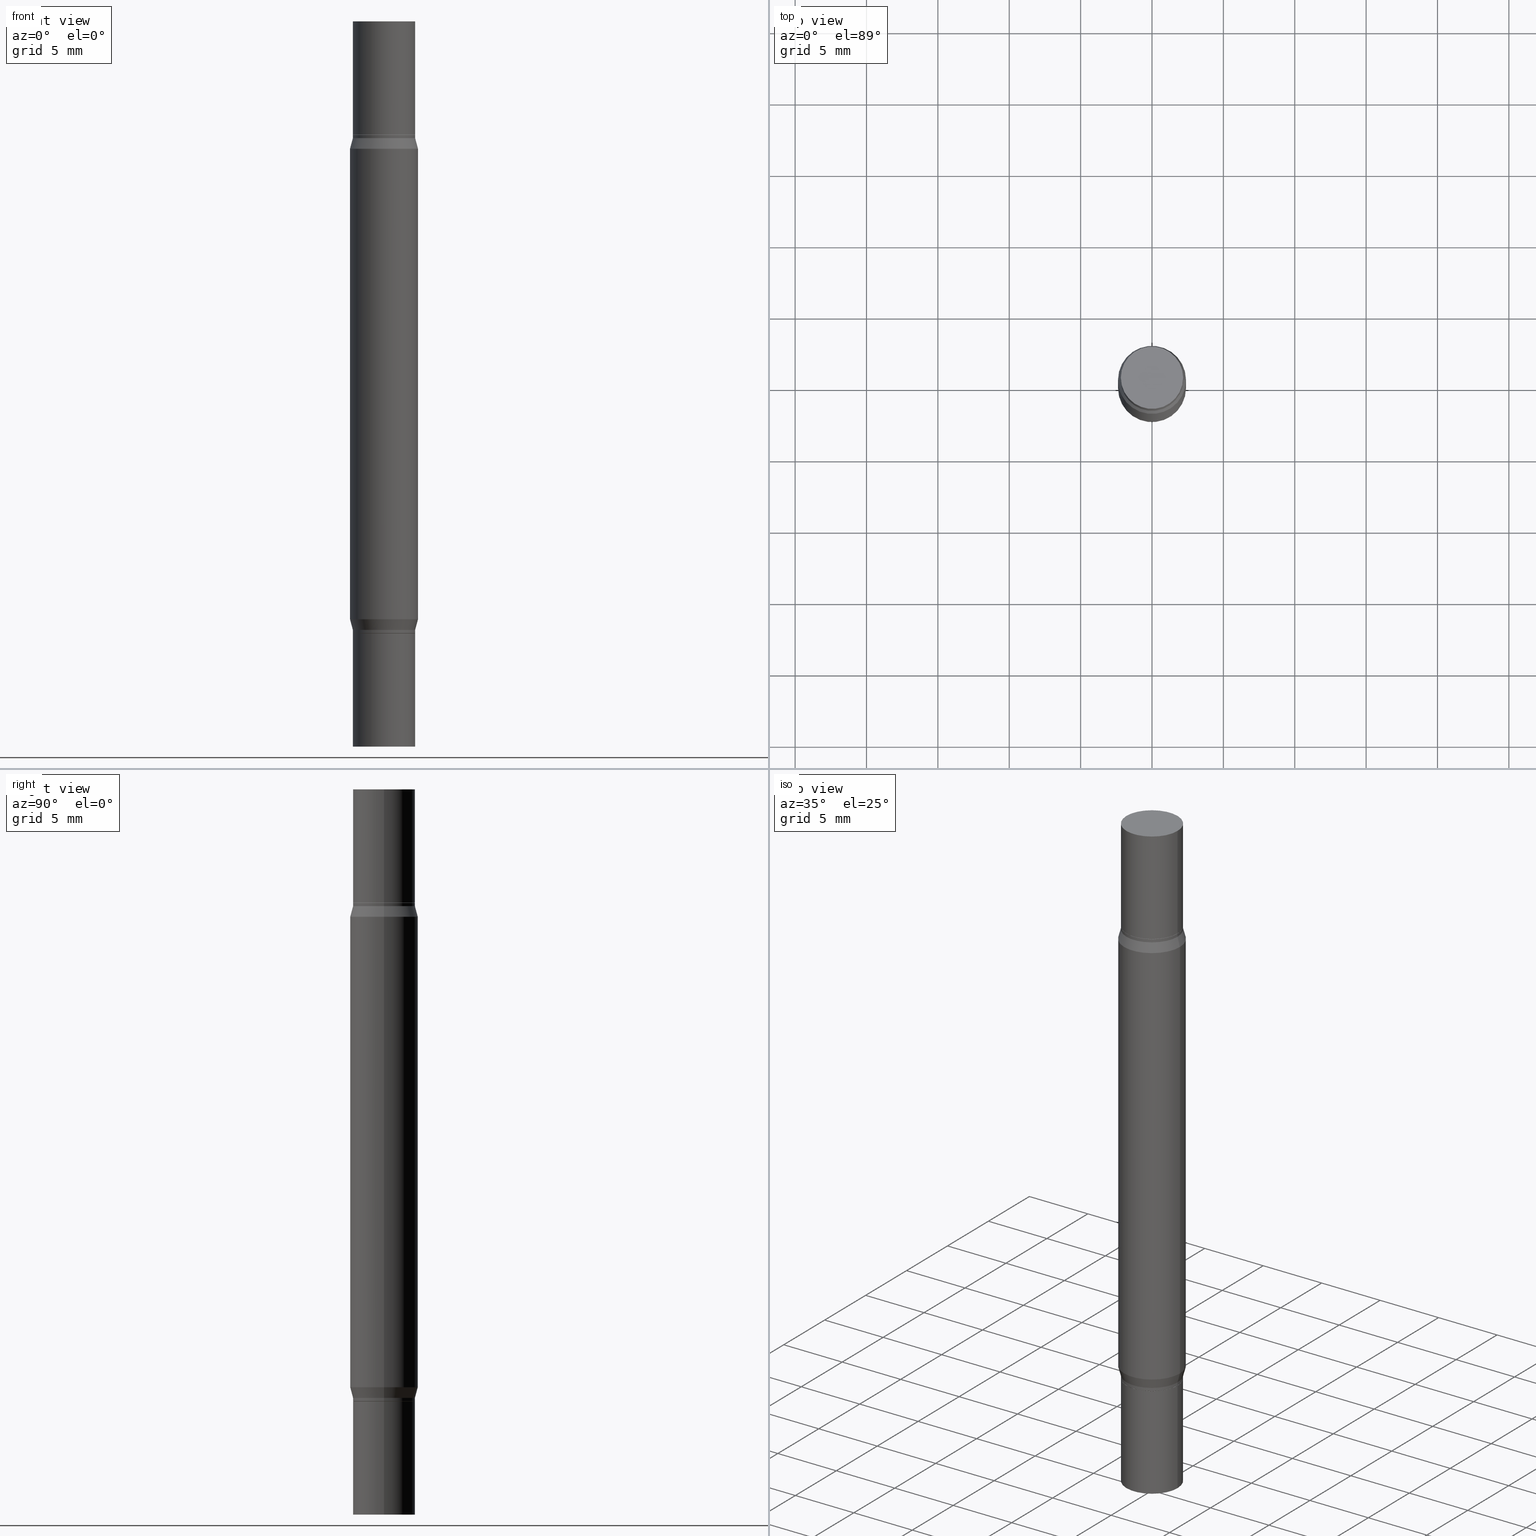
[diagram: canonical four-view strip — front | top / right | iso, engineering-drawing reading convention]
A machine part, canonical four-view strip (front | top / right | iso — engineering-drawing reading convention). The complete STEP part file that produces these views, byte-faithful:
ISO-10303-21;
HEADER;
FILE_DESCRIPTION (( 'STEP AP203' ),
    '1' );
FILE_NAME ('39669.STEP',
    '2024-03-04T16:07:02',
    ( '' ),
    ( '' ),
    'SwSTEP 2.0',
    'SolidWorks 2023',
    '' );
FILE_SCHEMA (( 'CONFIG_CONTROL_DESIGN' ));
ENDSEC;

DATA;
#1 = ORIENTED_EDGE ( 'NONE', *, *, #429, .F. ) ;
#2 = PERSON_AND_ORGANIZATION ( #124, #460 ) ;
#3 = VECTOR ( 'NONE', #707, 39.37007874015748854 ) ;
#4 = CYLINDRICAL_SURFACE ( 'NONE', #758, 0.08594999999999998475 ) ;
#5 = CIRCLE ( 'NONE', #336, 0.08594999999999963780 ) ;
#6 = AXIS2_PLACEMENT_3D ( 'NONE', #965, #440, #586 ) ;
#7 = ADVANCED_FACE ( 'NONE', ( #782 ), #584, .T. ) ;
#8 = APPROVAL_STATUS ( 'not_yet_approved' ) ;
#9 = DIRECTION ( 'NONE',  ( 2.445468806185136597E-29, 3.491805094961124077E-15, 1.000000000000000000 ) ) ;
#10 = CARTESIAN_POINT ( 'NONE',  ( 0.08544999999999998430, -1.685813594318181818E-15, -0.3119999999999992779 ) ) ;
#11 = APPROVAL_STATUS ( 'not_yet_approved' ) ;
#12 = DIRECTION ( 'NONE',  ( 1.000000000000000000, -6.982962677686268288E-15, 0.000000000000000000 ) ) ;
#13 = CARTESIAN_POINT ( 'NONE',  ( -0.08594999999999998475, -5.827580107440954061E-15, -1.688000000000000167 ) ) ;
#14 = DATE_AND_TIME ( #156, #134 ) ;
#15 = FACE_OUTER_BOUND ( 'NONE', #845, .T. ) ;
#16 = ADVANCED_FACE ( 'NONE', ( #419 ), #439, .F. ) ;
#17 = AXIS2_PLACEMENT_3D ( 'NONE', #257, #557, #482 ) ;
#18 = CIRCLE ( 'NONE', #886, 0.08594999999999963780 ) ;
#19 = CONICAL_SURFACE ( 'NONE', #506, 0.08595000000000019291, 0.2617993877991494078 ) ;
#20 = APPROVAL_DATE_TIME ( #236, #648 ) ;
#21 = VERTEX_POINT ( 'NONE', #34 ) ;
#22 = DIRECTION ( 'NONE',  ( -0.7071067811861732055, 7.493145998869000475E-15, 0.7071067811869217179 ) ) ;
#23 = CC_DESIGN_DATE_AND_TIME_ASSIGNMENT ( #525, #165, ( #53 ) ) ;
#24 = ORIENTED_EDGE ( 'NONE', *, *, #480, .T. ) ;
#25 = DIRECTION ( 'NONE',  ( 1.000000000000000000, -6.982962677686261977E-15, 0.000000000000000000 ) ) ;
#26 = VERTEX_POINT ( 'NONE', #776 ) ;
#27 = CYLINDRICAL_SURFACE ( 'NONE', #239, 0.09374999999999998612 ) ;
#28 = CARTESIAN_POINT ( 'NONE',  ( 0.08594999999999963780, -1.691050978204503628E-15, -0.3124999999999994449 ) ) ;
#29 = ORIENTED_EDGE ( 'NONE', *, *, #138, .F. ) ;
#30 = DIRECTION ( 'NONE',  ( 1.000000000000000000, -6.982962677686269077E-15, 0.000000000000000000 ) ) ;
#31 = CARTESIAN_POINT ( 'NONE',  ( 4.103496656778659263E-29, -5.858705686578797902E-15, -1.677999999999999936 ) ) ;
#32 = CARTESIAN_POINT ( 'NONE',  ( -0.08544999999999998430, -5.028898796003130664E-16, -0.3119999999999992779 ) ) ;
#33 = AXIS2_PLACEMENT_3D ( 'NONE', #188, #812, #797 ) ;
#34 = CARTESIAN_POINT ( 'NONE',  ( 0.08594999999999998475, -7.583148319833424603E-15, -2.000000000000000000 ) ) ;
#35 = DIRECTION ( 'NONE',  ( 1.000000000000000000, -6.982962677686265922E-15, 2.260776888683160832E-33 ) ) ;
#36 = CIRCLE ( 'NONE', #583, 0.08594999999999998475 ) ;
#37 = CIRCLE ( 'NONE', #291, 0.08594999999999998475 ) ;
#38 = ORIENTED_EDGE ( 'NONE', *, *, #248, .F. ) ;
#39 = PLANE ( 'NONE',  #585 ) ;
#40 = CYLINDRICAL_SURFACE ( 'NONE', #131, 0.09374999999999998612 ) ;
#41 = ORIENTED_EDGE ( 'NONE', *, *, #232, .F. ) ;
#42 = DIRECTION ( 'NONE',  ( 2.445468806185136597E-29, 3.491805094961124077E-15, 1.000000000000000000 ) ) ;
#43 = ORIENTED_EDGE ( 'NONE', *, *, #592, .T. ) ;
#44 = CARTESIAN_POINT ( 'NONE',  ( -0.08594999999999998475, 4.526196421250688572E-17, 2.731847993664282447E-16 ) ) ;
#45 = ORIENTED_EDGE ( 'NONE', *, *, #137, .T. ) ;
#46 = DIRECTION ( 'NONE',  ( -2.445468806185136877E-29, -3.491805094961123683E-15, -1.000000000000000000 ) ) ;
#47 = DIRECTION ( 'NONE',  ( -0.7071067811861732055, 2.382025595308359988E-15, -0.7071067811869217179 ) ) ;
#48 = EDGE_CURVE ( 'NONE', #853, #177, #663, .T. ) ;
#49 = DIRECTION ( 'NONE',  ( -2.445468806185136597E-29, 3.491481338843145583E-15, 1.000000000000000000 ) ) ;
#50 = EDGE_CURVE ( 'NONE', #263, #183, #469, .T. ) ;
#51 = VECTOR ( 'NONE', #591, 39.37007874015748143 ) ;
#52 = CARTESIAN_POINT ( 'NONE',  ( -0.08544999999999998430, -5.028898796003130664E-16, -0.3119999999999992779 ) ) ;
#53 = SECURITY_CLASSIFICATION ( '', '', #844 ) ;
#54 = FACE_OUTER_BOUND ( 'NONE', #589, .T. ) ;
#55 = EDGE_LOOP ( 'NONE', ( #121, #909, #409, #243 ) ) ;
#56 = ORIENTED_EDGE ( 'NONE', *, *, #479, .T. ) ;
#57 = CARTESIAN_POINT ( 'NONE',  ( 4.890937612370273194E-29, -6.982962677686291165E-15, -2.000000000000000000 ) ) ;
#58 = ORIENTED_EDGE ( 'NONE', *, *, #748, .T. ) ;
#59 = FACE_OUTER_BOUND ( 'NONE', #962, .T. ) ;
#60 = ADVANCED_FACE ( 'NONE', ( #932 ), #616, .T. ) ;
#61 = LINE ( 'NONE', #666, #759 ) ;
#62 = EDGE_LOOP ( 'NONE', ( #130, #740, #24, #295 ) ) ;
#63 = CARTESIAN_POINT ( 'NONE',  ( 0.000000000000000000, -6.983286433804268871E-15, -1.999999999999999778 ) ) ;
#64 = VECTOR ( 'NONE', #462, 39.37007874015748854 ) ;
#65 = DIRECTION ( 'NONE',  ( 1.000000000000000000, -6.982962677686266711E-15, 0.000000000000000000 ) ) ;
#66 = CIRCLE ( 'NONE', #504, 0.08594999999999963780 ) ;
#67 = AXIS2_PLACEMENT_3D ( 'NONE', #140, #594, #65 ) ;
#68 = CARTESIAN_POINT ( 'NONE',  ( 4.127951344840510809E-29, -5.893620499967230340E-15, -1.688000000000000167 ) ) ;
#69 = CC_DESIGN_APPROVAL ( #648, ( #53 ) ) ;
#70 = VERTEX_POINT ( 'NONE', #28 ) ;
#71 = CARTESIAN_POINT ( 'NONE',  ( 0.08595000000000019291, -6.458891328725934495E-15, -1.677999999999999936 ) ) ;
#72 = FACE_OUTER_BOUND ( 'NONE', #284, .T. ) ;
#73 = CARTESIAN_POINT ( 'NONE',  ( 0.000000000000000000, 0.000000000000000000, 0.000000000000000000 ) ) ;
#74 = CARTESIAN_POINT ( 'NONE',  ( 0.000000000000000000, -6.983286433804268871E-15, -1.999999999999999778 ) ) ;
#75 = ADVANCED_FACE ( 'NONE', ( #704 ), #256, .F. ) ;
#76 = CARTESIAN_POINT ( 'NONE',  ( 6.001856421471757400E-16, 0.08594999999999890228, -0.3119999999999998330 ) ) ;
#77 = EDGE_CURVE ( 'NONE', #401, #853, #930, .T. ) ;
#78 = PERSON_AND_ORGANIZATION ( #124, #460 ) ;
#79 = AXIS2_PLACEMENT_3D ( 'NONE', #353, #873, #208 ) ;
#80 = CARTESIAN_POINT ( 'NONE',  ( 4.103496656778659263E-29, -1.124037484459502956E-15, -0.3219999999999997309 ) ) ;
#81 = AXIS2_PLACEMENT_3D ( 'NONE', #282, #355, #948 ) ;
#82 = CIRCLE ( 'NONE', #491, 0.08594999999999998475 ) ;
#83 = LOCAL_TIME ( 11, 7, 2.000000000000000000, #542 ) ;
#84 = DIRECTION ( 'NONE',  ( 0.000000000000000000, 0.000000000000000000, 1.000000000000000000 ) ) ;
#85 = CARTESIAN_POINT ( 'NONE',  ( 4.032309068881200734E-29, -1.225683917850777370E-15, -0.3511099962990362200 ) ) ;
#86 = ADVANCED_FACE ( 'NONE', ( #249 ), #323, .T. ) ;
#87 = FACE_OUTER_BOUND ( 'NONE', #487, .T. ) ;
#88 = APPROVAL_ROLE ( '' ) ;
#89 = ORIENTED_EDGE ( 'NONE', *, *, #671, .F. ) ;
#90 = DIRECTION ( 'NONE',  ( 1.000000000000000000, -6.982962677686263555E-15, 0.000000000000000000 ) ) ;
#91 = VECTOR ( 'NONE', #277, 39.37007874015748854 ) ;
#92 = AXIS2_PLACEMENT_3D ( 'NONE', #667, #502, #442 ) ;
#93 = AXIS2_PLACEMENT_3D ( 'NONE', #722, #727, #514 ) ;
#94 = AXIS2_PLACEMENT_3D ( 'NONE', #73, #84, #695 ) ;
#95 = LOCAL_TIME ( 11, 7, 2.000000000000000000, #310 ) ;
#96 = DIRECTION ( 'NONE',  ( -2.445468806185136597E-29, -3.491805094961124077E-15, -1.000000000000000000 ) ) ;
#97 = ORIENTED_EDGE ( 'NONE', *, *, #50, .T. ) ;
#98 = EDGE_CURVE ( 'NONE', #274, #195, #710, .T. ) ;
#99 = DIRECTION ( 'NONE',  ( -2.445468806185136597E-29, -3.491805094961124077E-15, -1.000000000000000000 ) ) ;
#100 = ORIENTED_EDGE ( 'NONE', *, *, #703, .F. ) ;
#101 = CARTESIAN_POINT ( 'NONE',  ( -0.08595000000000019291, -5.177916073499724462E-16, -0.3219999999999997309 ) ) ;
#102 = DIRECTION ( 'NONE',  ( 1.000000000000000000, -6.982962677686268288E-15, 0.000000000000000000 ) ) ;
#103 = EDGE_LOOP ( 'NONE', ( #517, #194, #246, #424 ) ) ;
#104 = EDGE_CURVE ( 'NONE', #381, #972, #621, .T. ) ;
#105 = DIRECTION ( 'NONE',  ( 1.000000000000000000, -6.982962677686265922E-15, 2.260776888683160832E-33 ) ) ;
#106 = ORIENTED_EDGE ( 'NONE', *, *, #358, .F. ) ;
#107 = DIRECTION ( 'NONE',  ( -2.445468806185136597E-29, -3.491805094961124077E-15, -1.000000000000000000 ) ) ;
#108 = FACE_OUTER_BOUND ( 'NONE', #570, .T. ) ;
#109 = ORIENTED_EDGE ( 'NONE', *, *, #219, .F. ) ;
#110 = AXIS2_PLACEMENT_3D ( 'NONE', #430, #786, #875 ) ;
#111 = DIRECTION ( 'NONE',  ( -2.445468806185136877E-29, -3.491805094961123683E-15, -1.000000000000000000 ) ) ;
#112 = VERTEX_POINT ( 'NONE', #13 ) ;
#113 = VECTOR ( 'NONE', #762, 39.37007874015748143 ) ;
#114 = CONICAL_SURFACE ( 'NONE', #598, 0.08595000000000019291, 0.2617993877991494078 ) ;
#115 = ADVANCED_FACE ( 'NONE', ( #615 ), #926, .F. ) ;
#116 = ORIENTED_EDGE ( 'NONE', *, *, #682, .T. ) ;
#117 = DIRECTION ( 'NONE',  ( 2.445468806185136597E-29, 3.491805094961124077E-15, 1.000000000000000000 ) ) ;
#118 = VERTEX_POINT ( 'NONE', #421 ) ;
#119 = DIRECTION ( 'NONE',  ( -2.445468806185136597E-29, 3.491481338843145583E-15, 1.000000000000000000 ) ) ;
#120 = CARTESIAN_POINT ( 'NONE',  ( -0.08594999999999998475, 4.526196421250688572E-17, -0.3119999999999995555 ) ) ;
#121 = ORIENTED_EDGE ( 'NONE', *, *, #566, .F. ) ;
#122 = EDGE_CURVE ( 'NONE', #373, #941, #950, .T. ) ;
#123 = LINE ( 'NONE', #422, #315 ) ;
#124 = PERSON ( 'UNSPECIFIED', 'UNSPECIFIED', 'UNSPECIFIED', ('UNSPECIFIED'), ('UNSPECIFIED'), ('UNSPECIFIED') ) ;
#125 = LINE ( 'NONE', #784, #887 ) ;
#126 = CARTESIAN_POINT ( 'NONE',  ( 0.08544999999999998430, -1.685813594318181818E-15, -0.3119999999999992779 ) ) ;
#127 = ORIENTED_EDGE ( 'NONE', *, *, #623, .T. ) ;
#128 = CARTESIAN_POINT ( 'NONE',  ( -0.08594999999999998475, 4.526196421250688572E-17, -0.3119999999999995555 ) ) ;
#129 = CARTESIAN_POINT ( 'NONE',  ( -0.08595000000000019291, -5.247994205192990421E-15, -1.677999999999999936 ) ) ;
#130 = ORIENTED_EDGE ( 'NONE', *, *, #683, .F. ) ;
#131 = AXIS2_PLACEMENT_3D ( 'NONE', #630, #780, #185 ) ;
#132 = CIRCLE ( 'NONE', #318, 0.08594999999999998475 ) ;
#133 = VECTOR ( 'NONE', #47, 39.37007874015748854 ) ;
#134 = LOCAL_TIME ( 11, 7, 2.000000000000000000, #389 ) ;
#135 = ORIENTED_EDGE ( 'NONE', *, *, #717, .T. ) ;
#136 = CARTESIAN_POINT ( 'NONE',  ( 4.103496656778659263E-29, -1.124037484459502956E-15, -0.3219999999999997309 ) ) ;
#137 = EDGE_CURVE ( 'NONE', #118, #381, #582, .T. ) ;
#138 = EDGE_CURVE ( 'NONE', #280, #796, #281, .T. ) ;
#139 = CARTESIAN_POINT ( 'NONE',  ( 4.127951344840510809E-29, -1.089119433509891190E-15, -0.3119999999999995555 ) ) ;
#140 = CARTESIAN_POINT ( 'NONE',  ( 4.890937612370273194E-29, 3.237561179798315247E-19, 2.731847993664263218E-16 ) ) ;
#141 = ORIENTED_EDGE ( 'NONE', *, *, #892, .T. ) ;
#142 = DIRECTION ( 'NONE',  ( 2.445468806185136597E-29, 3.491805094961124077E-15, 1.000000000000000000 ) ) ;
#143 = FACE_OUTER_BOUND ( 'NONE', #720, .T. ) ;
#144 = ORIENTED_EDGE ( 'NONE', *, *, #912, .T. ) ;
#145 = AXIS2_PLACEMENT_3D ( 'NONE', #173, #927, #622 ) ;
#146 = CIRCLE ( 'NONE', #273, 0.09374999999999998612 ) ;
#147 = CONICAL_SURFACE ( 'NONE', #933, 0.08595000000000019291, 0.2617993877991494078 ) ;
#148 = CIRCLE ( 'NONE', #868, 0.08544999999999998430 ) ;
#149 = CARTESIAN_POINT ( 'NONE',  ( 4.103496656778659263E-29, -5.858705686578797902E-15, -1.677999999999999936 ) ) ;
#150 = ORIENTED_EDGE ( 'NONE', *, *, #285, .T. ) ;
#151 = DIRECTION ( 'NONE',  ( -2.445468806185136597E-29, 3.491481338843145583E-15, 1.000000000000000000 ) ) ;
#152 = CARTESIAN_POINT ( 'NONE',  ( 4.103496656778659263E-29, -1.124037484459502956E-15, -0.3219999999999997309 ) ) ;
#153 = EDGE_CURVE ( 'NONE', #870, #467, #503, .T. ) ;
#154 = CARTESIAN_POINT ( 'NONE',  ( 0.08544999999999998430, -6.490314660775522348E-15, -1.688000000000000389 ) ) ;
#155 = EDGE_CURVE ( 'NONE', #798, #815, #607, .T. ) ;
#156 = CALENDAR_DATE ( 2024, 4, 3 ) ;
#157 = DIRECTION ( 'NONE',  ( -2.445468806185136597E-29, -3.491805094961124077E-15, -1.000000000000000000 ) ) ;
#158 = DIRECTION ( 'NONE',  ( -1.000000000000000000, 6.982962677686265922E-15, -2.260776888683160832E-33 ) ) ;
#159 = AXIS2_PLACEMENT_3D ( 'NONE', #737, #475, #105 ) ;
#160 = LINE ( 'NONE', #846, #919 ) ;
#161 = CIRCLE ( 'NONE', #471, 0.09374999999999998612 ) ;
#162 = CIRCLE ( 'NONE', #276, 0.08544999999999998430 ) ;
#163 = ADVANCED_FACE ( 'NONE', ( #379 ), #914, .F. ) ;
#164 = DIRECTION ( 'NONE',  ( -2.438088387897959208E-29, -3.491805094961123683E-15, -1.000000000000000000 ) ) ;
#165 = DATE_TIME_ROLE ( 'classification_date' ) ;
#166 = CARTESIAN_POINT ( 'NONE',  ( -0.08594999999999990148, 6.107114813858054097E-16, -4.227824710074086685E-30 ) ) ;
#167 = ORIENTED_EDGE ( 'NONE', *, *, #268, .T. ) ;
#168 = APPROVAL_ROLE ( '' ) ;
#169 = ORIENTED_EDGE ( 'NONE', *, *, #574, .F. ) ;
#170 = LINE ( 'NONE', #605, #746 ) ;
#171 = AXIS2_PLACEMENT_3D ( 'NONE', #331, #407, #709 ) ;
#172 = CIRCLE ( 'NONE', #240, 0.08594999999999963780 ) ;
#173 = CARTESIAN_POINT ( 'NONE',  ( 0.000000000000000000, -6.983286433804268871E-15, -1.999999999999999778 ) ) ;
#174 = VERTEX_POINT ( 'NONE', #463 ) ;
#175 = CARTESIAN_POINT ( 'NONE',  ( 0.000000000000000000, -6.983286433804268871E-15, -1.999999999999999778 ) ) ;
#176 = EDGE_CURVE ( 'NONE', #265, #70, #680, .T. ) ;
#177 = VERTEX_POINT ( 'NONE', #228 ) ;
#178 = DIRECTION ( 'NONE',  ( 1.000000000000000000, -6.982962677686265922E-15, 4.876176775795935793E-29 ) ) ;
#179 = ORIENTED_EDGE ( 'NONE', *, *, #898, .F. ) ;
#180 = DIRECTION ( 'NONE',  ( 1.000000000000000000, -6.982962677686268288E-15, 0.000000000000000000 ) ) ;
#181 = CARTESIAN_POINT ( 'NONE',  ( 0.000000000000000000, 0.000000000000000000, 0.000000000000000000 ) ) ;
#182 = VERTEX_POINT ( 'NONE', #528 ) ;
#183 = VERTEX_POINT ( 'NONE', #312 ) ;
#184 = DIRECTION ( 'NONE',  ( -2.445468806185136597E-29, -3.491805094961124077E-15, -1.000000000000000000 ) ) ;
#185 = DIRECTION ( 'NONE',  ( 1.000000000000000000, -6.982962677686263555E-15, 0.000000000000000000 ) ) ;
#186 = ADVANCED_FACE ( 'NONE', ( #233 ), #533, .F. ) ;
#188 = CARTESIAN_POINT ( 'NONE',  ( 0.000000000000000000, 0.000000000000000000, 0.000000000000000000 ) ) ;
#187 = AXIS2_PLACEMENT_3D ( 'NONE', #777, #789, #414 ) ;
#189 = EDGE_CURVE ( 'NONE', #215, #26, #692, .T. ) ;
#190 = VECTOR ( 'NONE', #311, 39.37007874015748143 ) ;
#191 = VECTOR ( 'NONE', #840, 39.37007874015748854 ) ;
#192 = CARTESIAN_POINT ( 'NONE',  ( 0.08594999999999963780, -6.492060401444940696E-15, -1.687500000000000222 ) ) ;
#193 = DIRECTION ( 'NONE',  ( -2.445468806185136597E-29, -3.491805094961124077E-15, -1.000000000000000000 ) ) ;
#194 = ORIENTED_EDGE ( 'NONE', *, *, #566, .T. ) ;
#195 = VERTEX_POINT ( 'NONE', #120 ) ;
#196 = CARTESIAN_POINT ( 'NONE',  ( -0.08594999999999998475, -6.393626630895806321E-15, -1.999999999999999778 ) ) ;
#197 = ADVANCED_FACE ( 'NONE', ( #732 ), #435, .F. ) ;
#198 = CARTESIAN_POINT ( 'NONE',  ( 0.08594999999999998475, -5.998618860291546470E-16, 2.731847993664263218E-16 ) ) ;
#199 = FACE_OUTER_BOUND ( 'NONE', #978, .T. ) ;
#200 = DIRECTION ( 'NONE',  ( 2.445468806185136597E-29, 3.491805094961124077E-15, 1.000000000000000000 ) ) ;
#201 = ORIENTED_EDGE ( 'NONE', *, *, #50, .F. ) ;
#202 = ORIENTED_EDGE ( 'NONE', *, *, #122, .F. ) ;
#203 = LENGTH_MEASURE_WITH_UNIT ( LENGTH_MEASURE( 0.02539999999999999897 ), #500 );
#204 = ORIENTED_EDGE ( 'NONE', *, *, #892, .F. ) ;
#205 = DIRECTION ( 'NONE',  ( -2.445468806185136877E-29, -3.491805094961123683E-15, -1.000000000000000000 ) ) ;
#206 = EDGE_LOOP ( 'NONE', ( #202, #513, #360, #511 ) ) ;
#207 = CIRCLE ( 'NONE', #17, 0.08594999999999998475 ) ;
#208 = DIRECTION ( 'NONE',  ( 1.000000000000000000, -6.982962677686267499E-15, 0.000000000000000000 ) ) ;
#209 = AXIS2_PLACEMENT_3D ( 'NONE', #861, #428, #559 ) ;
#210 = DIRECTION ( 'NONE',  ( 1.000000000000000000, -6.982962677686267499E-15, 0.000000000000000000 ) ) ;
#211 = LINE ( 'NONE', #287, #51 ) ;
#212 = CARTESIAN_POINT ( 'NONE',  ( -0.08594999999999998475, -6.393626630895806321E-15, -1.999999999999999778 ) ) ;
#213 = VERTEX_POINT ( 'NONE', #803 ) ;
#214 = LINE ( 'NONE', #588, #290 ) ;
#215 = VERTEX_POINT ( 'NONE', #198 ) ;
#216 = DIRECTION ( 'NONE',  ( 1.000000000000000000, -6.982962677686267499E-15, 0.000000000000000000 ) ) ;
#217 = ORIENTED_EDGE ( 'NONE', *, *, #977, .T. ) ;
#218 = EDGE_CURVE ( 'NONE', #431, #321, #123, .T. ) ;
#219 = EDGE_CURVE ( 'NONE', #404, #21, #448, .T. ) ;
#220 = CIRCLE ( 'NONE', #110, 0.08594999999999998475 ) ;
#221 = ADVANCED_FACE ( 'NONE', ( #225 ), #808, .T. ) ;
#222 = LINE ( 'NONE', #212, #535 ) ;
#223 = VECTOR ( 'NONE', #292, 39.37007874015748854 ) ;
#224 = CARTESIAN_POINT ( 'NONE',  ( 0.000000000000000000, -6.983286433804268871E-15, -1.999999999999999778 ) ) ;
#225 = FACE_OUTER_BOUND ( 'NONE', #724, .T. ) ;
#226 = DATE_AND_TIME ( #915, #83 ) ;
#227 = DIRECTION ( 'NONE',  ( 1.000000000000000000, -6.982962677686268288E-15, 0.000000000000000000 ) ) ;
#228 = CARTESIAN_POINT ( 'NONE',  ( -0.08594999999999963780, -5.281163277912004511E-15, -1.687500000000000222 ) ) ;
#229 = APPROVAL_DATE_TIME ( #454, #302 ) ;
#230 = EDGE_CURVE ( 'NONE', #195, #274, #207, .T. ) ;
#231 = CARTESIAN_POINT ( 'NONE',  ( 4.127951344840511369E-29, -1.089119433509890204E-15, -0.3119999999999992779 ) ) ;
#232 = EDGE_CURVE ( 'NONE', #815, #274, #476, .T. ) ;
#233 = FACE_OUTER_BOUND ( 'NONE', #632, .T. ) ;
#234 = ORIENTED_EDGE ( 'NONE', *, *, #682, .F. ) ;
#235 = MANIFOLD_SOLID_BREP ( 'Mirror1[1]', #643 ) ;
#236 = DATE_AND_TIME ( #603, #95 ) ;
#237 = CLOSED_SHELL ( 'NONE', ( #509, #774, #960, #969 ) ) ;
#238 = DIRECTION ( 'NONE',  ( -2.445468806185136597E-29, 3.491481338843145583E-15, 1.000000000000000000 ) ) ;
#239 = AXIS2_PLACEMENT_3D ( 'NONE', #701, #99, #611 ) ;
#240 = AXIS2_PLACEMENT_3D ( 'NONE', #881, #299, #210 ) ;
#241 = APPLICATION_PROTOCOL_DEFINITION ( 'international standard', 'config_control_design', 1994, #486 ) ;
#242 = PLANE ( 'NONE',  #848 ) ;
#243 = ORIENTED_EDGE ( 'NONE', *, *, #524, .F. ) ;
#244 = PERSON_AND_ORGANIZATION ( #124, #460 ) ;
#245 = LINE ( 'NONE', #390, #191 ) ;
#246 = ORIENTED_EDGE ( 'NONE', *, *, #297, .F. ) ;
#247 = EDGE_CURVE ( 'NONE', #280, #215, #220, .T. ) ;
#248 = EDGE_CURVE ( 'NONE', #855, #213, #146, .T. ) ;
#249 = FACE_OUTER_BOUND ( 'NONE', #483, .T. ) ;
#250 = EDGE_LOOP ( 'NONE', ( #731, #395, #470, #270 ) ) ;
#251 = DIRECTION ( 'NONE',  ( 1.000000000000000000, -6.982962677686267499E-15, 0.000000000000000000 ) ) ;
#252 = DIRECTION ( 'NONE',  ( 0.000000000000000000, 1.000000000000000000, -3.491643216902134435E-15 ) ) ;
#253 = ORIENTED_EDGE ( 'NONE', *, *, #655, .T. ) ;
#254 = AXIS2_PLACEMENT_3D ( 'NONE', #63, #581, #658 ) ;
#255 = AXIS2_PLACEMENT_3D ( 'NONE', #651, #521, #968 ) ;
#256 = PLANE ( 'NONE',  #516 ) ;
#257 = CARTESIAN_POINT ( 'NONE',  ( 4.127951344840510809E-29, -1.089119433509891190E-15, -0.3119999999999995555 ) ) ;
#258 = MANIFOLD_SOLID_BREP ( 'Mirror1[3]', #303 ) ;
#259 = PRODUCT_RELATED_PRODUCT_CATEGORY ( 'detail', '', ( #967 ) ) ;
#260 = ORIENTED_EDGE ( 'NONE', *, *, #77, .T. ) ;
#261 = CARTESIAN_POINT ( 'NONE',  ( 0.08594999999999998475, -5.998618860291546470E-16, 2.731847993664263218E-16 ) ) ;
#262 = FACE_OUTER_BOUND ( 'NONE', #618, .T. ) ;
#263 = VERTEX_POINT ( 'NONE', #346 ) ;
#264 = EDGE_LOOP ( 'NONE', ( #778, #772, #141, #338 ) ) ;
#265 = VERTEX_POINT ( 'NONE', #126 ) ;
#266 = ORIENTED_EDGE ( 'NONE', *, *, #155, .T. ) ;
#267 = DIRECTION ( 'NONE',  ( 1.000000000000000000, -6.982962677686267499E-15, 0.000000000000000000 ) ) ;
#268 = EDGE_CURVE ( 'NONE', #350, #870, #805, .T. ) ;
#269 = CARTESIAN_POINT ( 'NONE',  ( -0.08544999999999998430, -5.020477063746119810E-16, -0.3119999999999992779 ) ) ;
#270 = ORIENTED_EDGE ( 'NONE', *, *, #655, .F. ) ;
#271 = CYLINDRICAL_SURFACE ( 'NONE', #400, 0.08594999999999998475 ) ;
#272 = CARTESIAN_POINT ( 'NONE',  ( 4.103496656778659263E-29, -1.124037484459502956E-15, -0.3219999999999997309 ) ) ;
#273 = AXIS2_PLACEMENT_3D ( 'NONE', #637, #200, #499 ) ;
#274 = VERTEX_POINT ( 'NONE', #883 ) ;
#275 = CONICAL_SURFACE ( 'NONE', #396, 0.08595000000000019291, 0.2617993877991494078 ) ;
#276 = AXIS2_PLACEMENT_3D ( 'NONE', #645, #954, #946 ) ;
#277 = DIRECTION ( 'NONE',  ( -0.2588190451025206840, -1.597197180879718862E-15, -0.9659258262890682012 ) ) ;
#278 = FACE_OUTER_BOUND ( 'NONE', #650, .T. ) ;
#279 = CARTESIAN_POINT ( 'NONE',  ( -0.08595000000000019291, -5.177916073499724462E-16, -0.3219999999999997309 ) ) ;
#280 = VERTEX_POINT ( 'NONE', #44 ) ;
#281 = LINE ( 'NONE', #196, #411 ) ;
#282 = CARTESIAN_POINT ( 'NONE',  ( 2.445468806185136317E-29, -3.491481338843145188E-15, -0.9999999999999998890 ) ) ;
#283 = ORIENTED_EDGE ( 'NONE', *, *, #640, .T. ) ;
#284 = EDGE_LOOP ( 'NONE', ( #558, #571, #705, #842 ) ) ;
#285 = EDGE_CURVE ( 'NONE', #301, #112, #393, .T. ) ;
#286 = FACE_OUTER_BOUND ( 'NONE', #974, .T. ) ;
#287 = CARTESIAN_POINT ( 'NONE',  ( -0.08594999999999998475, 6.107114813858060014E-16, -4.227824710074091590E-30 ) ) ;
#288 = ORIENTED_EDGE ( 'NONE', *, *, #683, .T. ) ;
#289 = VECTOR ( 'NONE', #907, 39.37007874015748854 ) ;
#290 = VECTOR ( 'NONE', #819, 39.37007874015748143 ) ;
#291 = AXIS2_PLACEMENT_3D ( 'NONE', #468, #768, #12 ) ;
#292 = DIRECTION ( 'NONE',  ( 0.2588190451025206840, -5.180148453816002468E-15, -0.9659258262890682012 ) ) ;
#293 = ORIENTED_EDGE ( 'NONE', *, *, #189, .F. ) ;
#294 = DIRECTION ( 'NONE',  ( 1.000000000000000000, -6.982962677686266711E-15, 0.000000000000000000 ) ) ;
#295 = ORIENTED_EDGE ( 'NONE', *, *, #858, .T. ) ;
#296 = DIRECTION ( 'NONE',  ( 1.000000000000000000, -6.982962677686268288E-15, 0.000000000000000000 ) ) ;
#297 = EDGE_CURVE ( 'NONE', #613, #350, #755, .T. ) ;
#298 = VERTEX_POINT ( 'NONE', #269 ) ;
#299 = DIRECTION ( 'NONE',  ( 2.445468806185136597E-29, 3.491805094961124077E-15, 1.000000000000000000 ) ) ;
#300 = DIRECTION ( 'NONE',  ( 1.000000000000000000, -6.982962677686268288E-15, 0.000000000000000000 ) ) ;
#301 = VERTEX_POINT ( 'NONE', #337 ) ;
#302 = APPROVAL ( #305, 'UNSPECIFIED' ) ;
#303 = CLOSED_SHELL ( 'NONE', ( #86, #186, #843, #163 ) ) ;
#304 = CIRCLE ( 'NONE', #792, 0.09374999999999998612 ) ;
#305 = APPROVAL_STATUS ( 'not_yet_approved' ) ;
#306 = AXIS2_PLACEMENT_3D ( 'NONE', #85, #9, #925 ) ;
#307 = DIRECTION ( 'NONE',  ( 2.445468806185136597E-29, 3.491805094961124077E-15, 1.000000000000000000 ) ) ;
#308 = ADVANCED_FACE ( 'NONE', ( #577 ), #40, .T. ) ;
#309 = EDGE_CURVE ( 'NONE', #853, #613, #938, .T. ) ;
#310 = COORDINATED_UNIVERSAL_TIME_OFFSET ( 5, 0, .BEHIND. ) ;
#311 = DIRECTION ( 'NONE',  ( -2.445468806185136877E-29, -3.491805094961123683E-15, -1.000000000000000000 ) ) ;
#312 = CARTESIAN_POINT ( 'NONE',  ( 0.09374999999999998612, -3.013235379380048882E-15, -0.9999999999999998890 ) ) ;
#313 = SHAPE_DEFINITION_REPRESENTATION ( #817, #765 ) ;
#314 = DIRECTION ( 'NONE',  ( -2.445468806185136877E-29, -3.491805094961123683E-15, -1.000000000000000000 ) ) ;
#315 = VECTOR ( 'NONE', #46, 39.37007874015748143 ) ;
#316 = DIRECTION ( 'NONE',  ( -2.445468806185136877E-29, -3.491805094961123683E-15, -1.000000000000000000 ) ) ;
#317 = DIRECTION ( 'NONE',  ( -2.445468806185136877E-29, -3.491805094961123683E-15, -1.000000000000000000 ) ) ;
#318 = AXIS2_PLACEMENT_3D ( 'NONE', #564, #555, #647 ) ;
#319 = AXIS2_PLACEMENT_3D ( 'NONE', #80, #913, #227 ) ;
#320 = PRODUCT_DEFINITION_FORMATION_WITH_SPECIFIED_SOURCE ( 'ANY', '', #967, .NOT_KNOWN. ) ;
#321 = VERTEX_POINT ( 'NONE', #716 ) ;
#322 = DIRECTION ( 'NONE',  ( 1.000000000000000000, -6.982962677686268288E-15, 0.000000000000000000 ) ) ;
#323 = CYLINDRICAL_SURFACE ( 'NONE', #790, 0.08594999999999998475 ) ;
#324 = VERTEX_POINT ( 'NONE', #944 ) ;
#325 = LINE ( 'NONE', #387, #190 ) ;
#326 = ADVANCED_FACE ( 'NONE', ( #262 ), #646, .T. ) ;
#327 = ORIENTED_EDGE ( 'NONE', *, *, #617, .F. ) ;
#328 = EDGE_CURVE ( 'NONE', #215, #280, #132, .T. ) ;
#329 = EDGE_LOOP ( 'NONE', ( #552, #266 ) ) ;
#330 = CARTESIAN_POINT ( 'NONE',  ( 4.032309068881200734E-29, -1.225683917850777370E-15, -0.3511099962990362200 ) ) ;
#331 = CARTESIAN_POINT ( 'NONE',  ( 4.126728610437418568E-29, -5.891874759297808836E-15, -1.687500000000000222 ) ) ;
#332 = PRODUCT_DEFINITION ( 'UNKNOWN', '', #320, #432 ) ;
#333 = ORIENTED_EDGE ( 'NONE', *, *, #623, .F. ) ;
#334 = DIRECTION ( 'NONE',  ( -1.000000000000000000, 6.982962677686265922E-15, -2.260776888683160832E-33 ) ) ;
#335 = AXIS2_PLACEMENT_3D ( 'NONE', #872, #523, #35 ) ;
#336 = AXIS2_PLACEMENT_3D ( 'NONE', #723, #49, #956 ) ;
#337 = CARTESIAN_POINT ( 'NONE',  ( 0.08594999999999998475, -6.493806142114363777E-15, -1.688000000000000167 ) ) ;
#338 = ORIENTED_EDGE ( 'NONE', *, *, #176, .F. ) ;
#339 = CIRCLE ( 'NONE', #849, 0.08544999999999998430 ) ;
#340 = ORIENTED_EDGE ( 'NONE', *, *, #218, .F. ) ;
#341 = ADVANCED_FACE ( 'NONE', ( #653 ), #275, .T. ) ;
#342 = CARTESIAN_POINT ( 'NONE',  ( 0.000000000000000000, -6.983286433804268871E-15, -1.999999999999999778 ) ) ;
#343 = DIRECTION ( 'NONE',  ( -2.445468806185136597E-29, 3.491481338843145583E-15, 1.000000000000000000 ) ) ;
#344 = CARTESIAN_POINT ( 'NONE',  ( 0.08594999999999998475, -7.583472075951403886E-15, -1.999999999999999778 ) ) ;
#345 = CARTESIAN_POINT ( 'NONE',  ( 0.08594999999999990148, -7.583472075951403886E-15, -1.999999999999999778 ) ) ;
#346 = CARTESIAN_POINT ( 'NONE',  ( -0.09374999999999998612, -1.715410941055880491E-15, -0.9999999999999998890 ) ) ;
#347 = ORIENTED_EDGE ( 'NONE', *, *, #921, .F. ) ;
#348 = DIRECTION ( 'NONE',  ( 2.438088387897959208E-29, 3.491805094961123683E-15, 1.000000000000000000 ) ) ;
#349 = CARTESIAN_POINT ( 'NONE',  ( 0.08594999999999990148, -6.001856421471340290E-16, 4.191073938796602335E-30 ) ) ;
#350 = VERTEX_POINT ( 'NONE', #417 ) ;
#351 = AXIS2_PLACEMENT_3D ( 'NONE', #149, #450, #749 ) ;
#352 = APPROVAL_PERSON_ORGANIZATION ( #689, #302, #88 ) ;
#353 = CARTESIAN_POINT ( 'NONE',  ( 4.127951344840511369E-29, -1.089119433509890204E-15, -0.3119999999999992779 ) ) ;
#354 = DIRECTION ( 'NONE',  ( -2.445468806185136597E-29, 3.491481338843145583E-15, 1.000000000000000000 ) ) ;
#355 = DIRECTION ( 'NONE',  ( -0.000000000000000000, -3.491643216902134830E-15, -1.000000000000000000 ) ) ;
#356 = ORIENTED_EDGE ( 'NONE', *, *, #809, .F. ) ;
#357 = ADVANCED_FACE ( 'NONE', ( #406 ), #730, .T. ) ;
#358 = EDGE_CURVE ( 'NONE', #183, #263, #825, .T. ) ;
#359 =( NAMED_UNIT ( * ) SI_UNIT ( $, .STERADIAN. ) SOLID_ANGLE_UNIT ( ) );
#360 = ORIENTED_EDGE ( 'NONE', *, *, #936, .T. ) ;
#361 = FACE_OUTER_BOUND ( 'NONE', #250, .T. ) ;
#362 = ADVANCED_FACE ( 'NONE', ( #54 ), #547, .T. ) ;
#363 = DIRECTION ( 'NONE',  ( 0.2588190451025206840, -5.180148453816002468E-15, -0.9659258262890682012 ) ) ;
#364 = EDGE_LOOP ( 'NONE', ( #697, #167, #884, #661 ) ) ;
#365 = CARTESIAN_POINT ( 'NONE',  ( 4.126728610437418568E-29, -1.090865336057370980E-15, -0.3124999999999994449 ) ) ;
#366 = CLOSED_SHELL ( 'NONE', ( #743, #16, #398, #711 ) ) ;
#367 = VECTOR ( 'NONE', #205, 39.37007874015748143 ) ;
#368 = VECTOR ( 'NONE', #510, 39.37007874015748854 ) ;
#369 = DIRECTION ( 'NONE',  ( -2.445468806185136597E-29, 3.491481338843145583E-15, 1.000000000000000000 ) ) ;
#370 = ADVANCED_FACE ( 'NONE', ( #108 ), #147, .T. ) ;
#371 = CARTESIAN_POINT ( 'NONE',  ( -0.08594999999999998475, -5.827580107440954061E-15, -2.000000000000000000 ) ) ;
#372 = ORIENTED_EDGE ( 'NONE', *, *, #122, .T. ) ;
#373 = VERTEX_POINT ( 'NONE', #279 ) ;
#374 = CYLINDRICAL_SURFACE ( 'NONE', #677, 0.08594999999999998475 ) ;
#375 = CC_DESIGN_DATE_AND_TIME_ASSIGNMENT ( #226, #678, ( #332 ) ) ;
#376 = CARTESIAN_POINT ( 'NONE',  ( 4.127951344840511369E-29, -5.893620499967231129E-15, -1.688000000000000389 ) ) ;
#377 = ORIENTED_EDGE ( 'NONE', *, *, #457, .F. ) ;
#378 = DIRECTION ( 'NONE',  ( 1.000000000000000000, -6.982962677686261977E-15, 0.000000000000000000 ) ) ;
#379 = FACE_OUTER_BOUND ( 'NONE', #721, .T. ) ;
#380 = EDGE_CURVE ( 'NONE', #177, #853, #5, .T. ) ;
#381 = VERTEX_POINT ( 'NONE', #963 ) ;
#382 = AXIS2_PLACEMENT_3D ( 'NONE', #910, #529, #322 ) ;
#383 = AXIS2_PLACEMENT_3D ( 'NONE', #862, #719, #489 ) ;
#384 = APPLICATION_PROTOCOL_DEFINITION ( 'international standard', 'config_control_design', 1994, #742 ) ;
#385 = CONICAL_SURFACE ( 'NONE', #209, 0.08544999999999998430, 0.7853981633969190357 ) ;
#386 = APPROVAL_PERSON_ORGANIZATION ( #78, #648, #168 ) ;
#387 = CARTESIAN_POINT ( 'NONE',  ( -0.08594999999999990148, -6.393626630895806321E-15, -1.999999999999999778 ) ) ;
#388 = ADVANCED_FACE ( 'NONE', ( #361 ), #676, .T. ) ;
#389 = COORDINATED_UNIVERSAL_TIME_OFFSET ( 5, 0, .BEHIND. ) ;
#390 = CARTESIAN_POINT ( 'NONE',  ( 0.08544999999999998430, -1.685813594318181818E-15, -0.3119999999999992779 ) ) ;
#391 = EDGE_CURVE ( 'NONE', #972, #373, #900, .T. ) ;
#392 = CARTESIAN_POINT ( 'NONE',  ( 0.000000000000000000, -6.983286433804268871E-15, -1.999999999999999778 ) ) ;
#393 = CIRCLE ( 'NONE', #949, 0.08594999999999998475 ) ;
#394 = APPROVAL_DATE_TIME ( #14, #602 ) ;
#395 = ORIENTED_EDGE ( 'NONE', *, *, #104, .T. ) ;
#396 = AXIS2_PLACEMENT_3D ( 'NONE', #272, #560, #102 ) ;
#397 = FACE_OUTER_BOUND ( 'NONE', #364, .T. ) ;
#398 = ADVANCED_FACE ( 'NONE', ( #59 ), #4, .T. ) ;
#399 = CONICAL_SURFACE ( 'NONE', #665, 0.08544999999999998430, 0.7853981633969190357 ) ;
#400 = AXIS2_PLACEMENT_3D ( 'NONE', #867, #184, #874 ) ;
#401 = VERTEX_POINT ( 'NONE', #154 ) ;
#402 = CYLINDRICAL_SURFACE ( 'NONE', #449, 0.09374999999999998612 ) ;
#403 = DIRECTION ( 'NONE',  ( 0.000000000000000000, 1.000000000000000000, -2.913971193241881161E-15 ) ) ;
#404 = VERTEX_POINT ( 'NONE', #371 ) ;
#405 = DIRECTION ( 'NONE',  ( 1.000000000000000000, -6.982962677686267499E-15, 0.000000000000000000 ) ) ;
#406 = FACE_OUTER_BOUND ( 'NONE', #55, .T. ) ;
#407 = DIRECTION ( 'NONE',  ( -2.445468806185136597E-29, 3.491481338843145583E-15, 1.000000000000000000 ) ) ;
#408 = ADVANCED_FACE ( 'NONE', ( #891 ), #600, .T. ) ;
#409 = ORIENTED_EDGE ( 'NONE', *, *, #309, .T. ) ;
#410 = CARTESIAN_POINT ( 'NONE',  ( -0.09374999999999998612, -5.825122305596969759E-16, -0.3511099962990362200 ) ) ;
#411 = VECTOR ( 'NONE', #495, 39.37007874015748143 ) ;
#412 = CONICAL_SURFACE ( 'NONE', #970, 0.08544999999999998430, 0.7853981633969190357 ) ;
#413 = DIRECTION ( 'NONE',  ( -2.445468806185136597E-29, 3.491481338843145583E-15, 1.000000000000000000 ) ) ;
#414 = DIRECTION ( 'NONE',  ( 1.000000000000000000, -6.982962677686266711E-15, 0.000000000000000000 ) ) ;
#415 = EDGE_LOOP ( 'NONE', ( #556, #217, #441, #41 ) ) ;
#416 = FACE_OUTER_BOUND ( 'NONE', #631, .T. ) ;
#417 = CARTESIAN_POINT ( 'NONE',  ( -0.08595000000000019291, -5.264578741552495889E-15, -1.677999999999999936 ) ) ;
#418 = ORIENTED_EDGE ( 'NONE', *, *, #358, .T. ) ;
#419 = FACE_OUTER_BOUND ( 'NONE', #329, .T. ) ;
#420 = EDGE_LOOP ( 'NONE', ( #841, #427, #58, #664 ) ) ;
#421 = CARTESIAN_POINT ( 'NONE',  ( 0.08544999999999998430, -1.685813594318181818E-15, -0.3119999999999992779 ) ) ;
#422 = CARTESIAN_POINT ( 'NONE',  ( 0.08594999999999990148, -7.583472075951403886E-15, -1.999999999999999778 ) ) ;
#423 = DIRECTION ( 'NONE',  ( -2.445468806185136877E-29, 3.491481338843145188E-15, 1.000000000000000000 ) ) ;
#424 = ORIENTED_EDGE ( 'NONE', *, *, #309, .F. ) ;
#425 = DIRECTION ( 'NONE',  ( 1.000000000000000000, -6.982962677686268288E-15, 0.000000000000000000 ) ) ;
#426 = ORIENTED_EDGE ( 'NONE', *, *, #498, .T. ) ;
#427 = ORIENTED_EDGE ( 'NONE', *, *, #219, .T. ) ;
#428 = DIRECTION ( 'NONE',  ( -2.445468806185136597E-29, 3.491481338843145583E-15, 1.000000000000000000 ) ) ;
#429 = EDGE_CURVE ( 'NONE', #972, #431, #18, .T. ) ;
#430 = CARTESIAN_POINT ( 'NONE',  ( 4.890937612370273194E-29, 3.237561179798315247E-19, 2.731847993664263218E-16 ) ) ;
#431 = VERTEX_POINT ( 'NONE', #736 ) ;
#432 = DESIGN_CONTEXT ( 'detailed design', #742, 'design' ) ;
#433 = AXIS2_PLACEMENT_3D ( 'NONE', #181, #485, #641 ) ;
#434 = CONICAL_SURFACE ( 'NONE', #6, 0.08544999999999998430, 0.7853981633969190357 ) ;
#435 = PLANE ( 'NONE',  #563 ) ;
#436 = LINE ( 'NONE', #71, #902 ) ;
#437 = DIRECTION ( 'NONE',  ( -2.445468806185136597E-29, -3.491805094961124077E-15, -1.000000000000000000 ) ) ;
#438 = CC_DESIGN_PERSON_AND_ORGANIZATION_ASSIGNMENT ( #761, #923, ( #320 ) ) ;
#439 = PLANE ( 'NONE',  #159 ) ;
#440 = DIRECTION ( 'NONE',  ( -2.445468806185136597E-29, -3.491805094961124077E-15, -1.000000000000000000 ) ) ;
#441 = ORIENTED_EDGE ( 'NONE', *, *, #230, .T. ) ;
#442 = DIRECTION ( 'NONE',  ( 1.000000000000000000, -6.982962677686268288E-15, 0.000000000000000000 ) ) ;
#443 = EDGE_CURVE ( 'NONE', #431, #972, #66, .T. ) ;
#444 = ADVANCED_FACE ( 'NONE', ( #816 ), #973, .T. ) ;
#445 = CARTESIAN_POINT ( 'NONE',  ( 0.08595000000000019291, -1.724223126606638957E-15, -0.3219999999999997309 ) ) ;
#446 = CYLINDRICAL_SURFACE ( 'NONE', #596, 0.08594999999999998475 ) ;
#447 = EDGE_LOOP ( 'NONE', ( #787, #333 ) ) ;
#448 = CIRCLE ( 'NONE', #835, 0.08594999999999998475 ) ;
#449 = AXIS2_PLACEMENT_3D ( 'NONE', #834, #157, #90 ) ;
#450 = DIRECTION ( 'NONE',  ( -2.445468806185136597E-29, 3.491481338843145583E-15, 1.000000000000000000 ) ) ;
#451 = ORIENTED_EDGE ( 'NONE', *, *, #554, .F. ) ;
#452 = FACE_OUTER_BOUND ( 'NONE', #420, .T. ) ;
#453 = DIRECTION ( 'NONE',  ( 1.000000000000000000, -6.982962677686269077E-15, 0.000000000000000000 ) ) ;
#454 = DATE_AND_TIME ( #905, #474 ) ;
#455 = DIMENSIONAL_EXPONENTS ( 1.000000000000000000, 0.000000000000000000, 0.000000000000000000, 0.000000000000000000, 0.000000000000000000, 0.000000000000000000, 0.000000000000000000 ) ;
#456 = DIRECTION ( 'NONE',  ( 1.000000000000000000, -6.982962677686265922E-15, 2.260776888683160832E-33 ) ) ;
#457 = EDGE_CURVE ( 'NONE', #373, #321, #918, .T. ) ;
#458 = EDGE_CURVE ( 'NONE', #112, #301, #36, .T. ) ;
#459 = AXIS2_PLACEMENT_3D ( 'NONE', #342, #793, #30 ) ;
#460 = ORGANIZATION ( 'UNSPECIFIED', 'UNSPECIFIED', '' ) ;
#461 = LINE ( 'NONE', #698, #728 ) ;
#462 = DIRECTION ( 'NONE',  ( -0.7071067811861732055, 2.382025595308359988E-15, -0.7071067811869217179 ) ) ;
#463 = CARTESIAN_POINT ( 'NONE',  ( 0.09374999999999998612, -1.880336668883865465E-15, -0.3511099962990362200 ) ) ;
#464 = PERSON_AND_ORGANIZATION_ROLE ( 'classification_officer' ) ;
#465 = CARTESIAN_POINT ( 'NONE',  ( 4.127951344840510809E-29, -1.089119433509891190E-15, -0.3119999999999995555 ) ) ;
#466 = EDGE_CURVE ( 'NONE', #213, #855, #161, .T. ) ;
#467 = VERTEX_POINT ( 'NONE', #752 ) ;
#468 = CARTESIAN_POINT ( 'NONE',  ( 4.127951344840510809E-29, -1.089119433509891190E-15, -0.3119999999999995555 ) ) ;
#469 = CIRCLE ( 'NONE', #693, 0.09374999999999998612 ) ;
#470 = ORIENTED_EDGE ( 'NONE', *, *, #429, .T. ) ;
#471 = AXIS2_PLACEMENT_3D ( 'NONE', #966, #142, #294 ) ;
#472 = CARTESIAN_POINT ( 'NONE',  ( 4.103496656778659263E-29, -5.858705686578797902E-15, -1.677999999999999936 ) ) ;
#473 = AXIS2_PLACEMENT_3D ( 'NONE', #57, #822, #507 ) ;
#474 = LOCAL_TIME ( 11, 7, 2.000000000000000000, #599 ) ;
#475 = DIRECTION ( 'NONE',  ( -2.438088387897959208E-29, -3.491805094961123683E-15, -1.000000000000000000 ) ) ;
#476 = LINE ( 'NONE', #688, #534 ) ;
#477 = ORIENTED_EDGE ( 'NONE', *, *, #524, .T. ) ;
#478 = CARTESIAN_POINT ( 'NONE',  ( -0.08594999999999998475, 4.526196421250688572E-17, 2.731847993664282447E-16 ) ) ;
#479 = EDGE_CURVE ( 'NONE', #852, #182, #713, .T. ) ;
#480 = EDGE_CURVE ( 'NONE', #213, #467, #214, .T. ) ;
#481 = CARTESIAN_POINT ( 'NONE',  ( 4.127951344840510809E-29, -5.893620499967230340E-15, -1.688000000000000167 ) ) ;
#482 = DIRECTION ( 'NONE',  ( 1.000000000000000000, -6.982962677686268288E-15, 0.000000000000000000 ) ) ;
#483 = EDGE_LOOP ( 'NONE', ( #896, #958, #135, #293 ) ) ;
#484 = DIRECTION ( 'NONE',  ( 2.445468806185136597E-29, 3.491805094961124077E-15, 1.000000000000000000 ) ) ;
#485 = DIRECTION ( 'NONE',  ( -2.445468806185136597E-29, 3.491481338843145583E-15, 1.000000000000000000 ) ) ;
#486 = APPLICATION_CONTEXT ( 'configuration controlled 3d designs of mechanical parts and assemblies' ) ;
#487 = EDGE_LOOP ( 'NONE', ( #204, #43, #56, #672 ) ) ;
#488 = DIRECTION ( 'NONE',  ( -2.445468806185136877E-29, -3.491805094961123683E-15, -1.000000000000000000 ) ) ;
#489 = DIRECTION ( 'NONE',  ( 1.000000000000000000, -6.982962677686268288E-15, 0.000000000000000000 ) ) ;
#490 = ORIENTED_EDGE ( 'NONE', *, *, #153, .F. ) ;
#491 = AXIS2_PLACEMENT_3D ( 'NONE', #636, #42, #180 ) ;
#492 = FACE_OUTER_BOUND ( 'NONE', #635, .T. ) ;
#493 = DIRECTION ( 'NONE',  ( 1.000000000000000000, -6.982962677686267499E-15, 0.000000000000000000 ) ) ;
#494 = ORIENTED_EDGE ( 'NONE', *, *, #480, .F. ) ;
#495 = DIRECTION ( 'NONE',  ( -2.445468806185136877E-29, -3.491805094961123683E-15, -1.000000000000000000 ) ) ;
#496 = EDGE_CURVE ( 'NONE', #182, #852, #608, .T. ) ;
#497 = LINE ( 'NONE', #52, #133 ) ;
#498 = EDGE_CURVE ( 'NONE', #404, #112, #211, .T. ) ;
#499 = DIRECTION ( 'NONE',  ( 1.000000000000000000, -6.982962677686266711E-15, 0.000000000000000000 ) ) ;
#500 =( LENGTH_UNIT ( ) NAMED_UNIT ( * ) SI_UNIT ( $, .METRE. ) );
#501 = ORIENTED_EDGE ( 'NONE', *, *, #285, .F. ) ;
#502 = DIRECTION ( 'NONE',  ( 2.445468806185136597E-29, 3.491805094961124077E-15, 1.000000000000000000 ) ) ;
#503 = CIRCLE ( 'NONE', #823, 0.09374999999999998612 ) ;
#504 = AXIS2_PLACEMENT_3D ( 'NONE', #745, #810, #674 ) ;
#505 = EDGE_LOOP ( 'NONE', ( #45, #806 ) ) ;
#506 = AXIS2_PLACEMENT_3D ( 'NONE', #472, #838, #804 ) ;
#507 = DIRECTION ( 'NONE',  ( 1.000000000000000000, -6.982962677686261977E-15, 0.000000000000000000 ) ) ;
#508 = DIRECTION ( 'NONE',  ( 2.445468806185136597E-29, 3.491805094961124077E-15, 1.000000000000000000 ) ) ;
#509 = ADVANCED_FACE ( 'NONE', ( #143 ), #446, .T. ) ;
#510 = DIRECTION ( 'NONE',  ( -0.2588190451025206840, -1.597197180879718862E-15, -0.9659258262890682012 ) ) ;
#511 = ORIENTED_EDGE ( 'NONE', *, *, #574, .T. ) ;
#512 = CARTESIAN_POINT ( 'NONE',  ( 4.103496656778659263E-29, -1.124037484459502956E-15, -0.3219999999999997309 ) ) ;
#513 = ORIENTED_EDGE ( 'NONE', *, *, #606, .F. ) ;
#514 = DIRECTION ( 'NONE',  ( 1.000000000000000000, -6.982962677686263555E-15, 0.000000000000000000 ) ) ;
#515 = DIRECTION ( 'NONE',  ( -2.445468806185136597E-29, 3.491481338843145583E-15, 1.000000000000000000 ) ) ;
#516 = AXIS2_PLACEMENT_3D ( 'NONE', #551, #854, #178 ) ;
#517 = ORIENTED_EDGE ( 'NONE', *, *, #48, .T. ) ;
#518 = CARTESIAN_POINT ( 'NONE',  ( 4.890937612370273194E-29, -6.982962677686291165E-15, -2.000000000000000000 ) ) ;
#519 = AXIS2_PLACEMENT_3D ( 'NONE', #136, #307, #296 ) ;
#520 = CIRCLE ( 'NONE', #93, 0.09374999999999998612 ) ;
#521 = DIRECTION ( 'NONE',  ( 2.438088387897960049E-29, -3.491481338843145188E-15, -1.000000000000000000 ) ) ;
#522 = DIRECTION ( 'NONE',  ( -2.445468806185136597E-29, -3.491805094961124077E-15, -1.000000000000000000 ) ) ;
#523 = DIRECTION ( 'NONE',  ( -2.438088387897959208E-29, -3.491805094961123683E-15, -1.000000000000000000 ) ) ;
#524 = EDGE_CURVE ( 'NONE', #350, #613, #836, .T. ) ;
#525 = DATE_AND_TIME ( #763, #629 ) ;
#526 = ADVANCED_FACE ( 'NONE', ( #72 ), #412, .T. ) ;
#527 = LINE ( 'NONE', #832, #628 ) ;
#528 = CARTESIAN_POINT ( 'NONE',  ( 0.08595000000000019291, -1.724223126606638957E-15, -0.3219999999999997309 ) ) ;
#529 = DIRECTION ( 'NONE',  ( -2.445468806185136597E-29, -3.491805094961124077E-15, -1.000000000000000000 ) ) ;
#530 = MECHANICAL_CONTEXT ( 'NONE', #486, 'mechanical' ) ;
#531 = CC_DESIGN_PERSON_AND_ORGANIZATION_ASSIGNMENT ( #2, #684, ( #967 ) ) ;
#532 = DIRECTION ( 'NONE',  ( 2.445468806185136597E-29, 3.491805094961124077E-15, 1.000000000000000000 ) ) ;
#533 = PLANE ( 'NONE',  #335 ) ;
#534 = VECTOR ( 'NONE', #316, 39.37007874015748143 ) ;
#535 = VECTOR ( 'NONE', #747, 39.37007874015748143 ) ;
#536 = CARTESIAN_POINT ( 'NONE',  ( 0.08595000000000019291, -6.458891328725934495E-15, -1.677999999999999936 ) ) ;
#537 = ADVANCED_FACE ( 'NONE', ( #773 ), #402, .T. ) ;
#538 = ADVANCED_FACE ( 'NONE', ( #685 ), #27, .T. ) ;
#539 = APPROVAL_ROLE ( '' ) ;
#540 = CYLINDRICAL_SURFACE ( 'NONE', #696, 0.08594999999999990148 ) ;
#541 = ORIENTED_EDGE ( 'NONE', *, *, #443, .F. ) ;
#542 = COORDINATED_UNIVERSAL_TIME_OFFSET ( 5, 0, .BEHIND. ) ;
#543 = ORIENTED_EDGE ( 'NONE', *, *, #176, .T. ) ;
#544 = DIRECTION ( 'NONE',  ( 1.000000000000000000, -6.982962677686267499E-15, 0.000000000000000000 ) ) ;
#545 = AXIS2_PLACEMENT_3D ( 'NONE', #31, #119, #569 ) ;
#546 = ORIENTED_EDGE ( 'NONE', *, *, #443, .T. ) ;
#547 = CONICAL_SURFACE ( 'NONE', #694, 0.08544999999999998430, 0.7853981633969190357 ) ;
#548 = FACE_OUTER_BOUND ( 'NONE', #668, .T. ) ;
#549 = AXIS2_PLACEMENT_3D ( 'NONE', #660, #369, #885 ) ;
#550 = CARTESIAN_POINT ( 'NONE',  ( 0.08544999999999998430, -6.490314660775522348E-15, -1.688000000000000389 ) ) ;
#551 = CARTESIAN_POINT ( 'NONE',  ( 4.127951344840510809E-29, -5.893620499967230340E-15, -1.688000000000000167 ) ) ;
#552 = ORIENTED_EDGE ( 'NONE', *, *, #898, .T. ) ;
#553 = CARTESIAN_POINT ( 'NONE',  ( 4.126728610437418568E-29, -1.090865336057370980E-15, -0.3124999999999994449 ) ) ;
#554 = EDGE_CURVE ( 'NONE', #324, #177, #461, .T. ) ;
#555 = DIRECTION ( 'NONE',  ( 2.445468806185136597E-29, 3.491805094961124077E-15, 1.000000000000000000 ) ) ;
#556 = ORIENTED_EDGE ( 'NONE', *, *, #155, .F. ) ;
#557 = DIRECTION ( 'NONE',  ( 2.445468806185136597E-29, 3.491805094961124077E-15, 1.000000000000000000 ) ) ;
#558 = ORIENTED_EDGE ( 'NONE', *, *, #959, .T. ) ;
#559 = DIRECTION ( 'NONE',  ( 1.000000000000000000, -6.982962677686267499E-15, 0.000000000000000000 ) ) ;
#560 = DIRECTION ( 'NONE',  ( -2.445468806185136597E-29, -3.491805094961124077E-15, -1.000000000000000000 ) ) ;
#561 = ORIENTED_EDGE ( 'NONE', *, *, #496, .T. ) ;
#562 = CYLINDRICAL_SURFACE ( 'NONE', #459, 0.08594999999999990148 ) ;
#563 = AXIS2_PLACEMENT_3D ( 'NONE', #139, #644, #953 ) ;
#564 = CARTESIAN_POINT ( 'NONE',  ( 4.890937612370273194E-29, 3.237561179798315247E-19, 2.731847993664263218E-16 ) ) ;
#565 = EDGE_LOOP ( 'NONE', ( #922, #576, #106, #234 ) ) ;
#566 = EDGE_CURVE ( 'NONE', #177, #350, #604, .T. ) ;
#567 = MANIFOLD_SOLID_BREP ( 'Combine1', #931 ) ;
#568 = PLANE ( 'NONE',  #837 ) ;
#569 = DIRECTION ( 'NONE',  ( 1.000000000000000000, -6.982962677686268288E-15, 0.000000000000000000 ) ) ;
#570 = EDGE_LOOP ( 'NONE', ( #877, #477, #686, #490 ) ) ;
#571 = ORIENTED_EDGE ( 'NONE', *, *, #554, .T. ) ;
#572 = DIRECTION ( 'NONE',  ( 0.7071067811861732055, -2.468850131078336422E-15, 0.7071067811869217179 ) ) ;
#573 = CARTESIAN_POINT ( 'NONE',  ( 4.032309068881200734E-29, -5.757068677726919122E-15, -1.648890003700963502 ) ) ;
#574 = EDGE_CURVE ( 'NONE', #174, #941, #304, .T. ) ;
#575 = DIRECTION ( 'NONE',  ( 1.000000000000000000, -6.982962677686268288E-15, 0.000000000000000000 ) ) ;
#576 = ORIENTED_EDGE ( 'NONE', *, *, #617, .T. ) ;
#577 = FACE_OUTER_BOUND ( 'NONE', #767, .T. ) ;
#578 = MANIFOLD_SOLID_BREP ( 'Mirror1[4]', #366 ) ;
#579 = PLANE ( 'NONE',  #255 ) ;
#580 = ADVANCED_FACE ( 'NONE', ( #15 ), #242, .F. ) ;
#581 = DIRECTION ( 'NONE',  ( -2.445468806185136597E-29, -3.491805094961124077E-15, -1.000000000000000000 ) ) ;
#582 = CIRCLE ( 'NONE', #79, 0.08544999999999998430 ) ;
#584 = CYLINDRICAL_SURFACE ( 'NONE', #33, 0.08594999999999990148 ) ;
#583 = AXIS2_PLACEMENT_3D ( 'NONE', #68, #889, #830 ) ;
#585 = AXIS2_PLACEMENT_3D ( 'NONE', #718, #348, #334 ) ;
#586 = DIRECTION ( 'NONE',  ( 1.000000000000000000, -6.982962677686267499E-15, 0.000000000000000000 ) ) ;
#587 = ORIENTED_EDGE ( 'NONE', *, *, #921, .T. ) ;
#588 = CARTESIAN_POINT ( 'NONE',  ( 0.09374999999999998612, -7.637939184837356375E-15, -1.999999999999999778 ) ) ;
#589 = EDGE_LOOP ( 'NONE', ( #100, #356, #543, #700 ) ) ;
#590 = CARTESIAN_POINT ( 'NONE',  ( -0.08594999999999963780, -5.012055331489108956E-16, -0.3124999999999994449 ) ) ;
#591 = DIRECTION ( 'NONE',  ( -2.445468806185136877E-29, 3.491481338843145188E-15, 1.000000000000000000 ) ) ;
#592 = EDGE_CURVE ( 'NONE', #783, #852, #325, .T. ) ;
#593 = ORIENTED_EDGE ( 'NONE', *, *, #809, .T. ) ;
#594 = DIRECTION ( 'NONE',  ( 2.445468806185136597E-29, 3.491805094961124077E-15, 1.000000000000000000 ) ) ;
#595 = DIRECTION ( 'NONE',  ( 1.000000000000000000, -6.982962677686267499E-15, 0.000000000000000000 ) ) ;
#596 = AXIS2_PLACEMENT_3D ( 'NONE', #976, #515, #824 ) ;
#597 = ADVANCED_FACE ( 'NONE', ( #87 ), #540, .T. ) ;
#598 = AXIS2_PLACEMENT_3D ( 'NONE', #152, #734, #575 ) ;
#599 = COORDINATED_UNIVERSAL_TIME_OFFSET ( 5, 0, .BEHIND. ) ;
#600 = CYLINDRICAL_SURFACE ( 'NONE', #254, 0.09374999999999998612 ) ;
#601 = DIRECTION ( 'NONE',  ( 2.438088387897959208E-29, 3.491805094961123683E-15, 1.000000000000000000 ) ) ;
#602 = APPROVAL ( #11, 'UNSPECIFIED' ) ;
#603 = CALENDAR_DATE ( 2024, 4, 3 ) ;
#604 = LINE ( 'NONE', #166, #113 ) ;
#605 = CARTESIAN_POINT ( 'NONE',  ( -0.09374999999999998612, -6.340114746513187787E-15, -1.999999999999999778 ) ) ;
#606 = EDGE_CURVE ( 'NONE', #321, #373, #866, .T. ) ;
#607 = CIRCLE ( 'NONE', #187, 0.08594999999999998475 ) ;
#608 = CIRCLE ( 'NONE', #92, 0.08595000000000019291 ) ;
#609 = CIRCLE ( 'NONE', #549, 0.08544999999999998430 ) ;
#610 = CC_DESIGN_SECURITY_CLASSIFICATION ( #53, ( #320 ) ) ;
#611 = DIRECTION ( 'NONE',  ( 1.000000000000000000, -6.982962677686263555E-15, 0.000000000000000000 ) ) ;
#612 = PERSON_AND_ORGANIZATION ( #124, #460 ) ;
#613 = VERTEX_POINT ( 'NONE', #536 ) ;
#614 = CARTESIAN_POINT ( 'NONE',  ( 4.127951344840511369E-29, -5.893620499967231129E-15, -1.688000000000000389 ) ) ;
#615 = FACE_OUTER_BOUND ( 'NONE', #750, .T. ) ;
#616 = CYLINDRICAL_SURFACE ( 'NONE', #145, 0.08594999999999990148 ) ;
#617 = EDGE_CURVE ( 'NONE', #941, #263, #527, .T. ) ;
#618 = EDGE_LOOP ( 'NONE', ( #908, #888, #638, #820 ) ) ;
#619 = LINE ( 'NONE', #345, #828 ) ;
#620 = DIRECTION ( 'NONE',  ( 0.000000000000000000, 3.491643216902134435E-15, 1.000000000000000000 ) ) ;
#621 = LINE ( 'NONE', #32, #64 ) ;
#622 = DIRECTION ( 'NONE',  ( 1.000000000000000000, -6.982962677686269077E-15, 0.000000000000000000 ) ) ;
#623 = EDGE_CURVE ( 'NONE', #324, #401, #339, .T. ) ;
#624 = VECTOR ( 'NONE', #111, 39.37007874015748143 ) ;
#625 = EDGE_LOOP ( 'NONE', ( #451, #127, #260, #802 ) ) ;
#626 = AXIS2_PLACEMENT_3D ( 'NONE', #512, #508, #300 ) ;
#627 = FACE_OUTER_BOUND ( 'NONE', #415, .T. ) ;
#628 = VECTOR ( 'NONE', #317, 39.37007874015748143 ) ;
#629 = LOCAL_TIME ( 11, 7, 2.000000000000000000, #833 ) ;
#630 = CARTESIAN_POINT ( 'NONE',  ( 0.000000000000000000, -6.983286433804268871E-15, -1.999999999999999778 ) ) ;
#631 = EDGE_LOOP ( 'NONE', ( #29, #939, #818, #826 ) ) ;
#632 = EDGE_LOOP ( 'NONE', ( #964, #735 ) ) ;
#633 = DIRECTION ( 'NONE',  ( -0.000000000000000000, -3.491643216902134830E-15, -1.000000000000000000 ) ) ;
#634 = EDGE_LOOP ( 'NONE', ( #791, #541, #871, #807 ) ) ;
#635 = EDGE_LOOP ( 'NONE', ( #945, #712, #253, #546 ) ) ;
#636 = CARTESIAN_POINT ( 'NONE',  ( 4.127951344840510809E-29, -1.089119433509891190E-15, -0.3119999999999995555 ) ) ;
#637 = CARTESIAN_POINT ( 'NONE',  ( 4.032309068881200734E-29, -1.225683917850777370E-15, -0.3511099962990362200 ) ) ;
#638 = ORIENTED_EDGE ( 'NONE', *, *, #878, .T. ) ;
#639 = CYLINDRICAL_SURFACE ( 'NONE', #955, 0.08594999999999998475 ) ;
#640 = EDGE_CURVE ( 'NONE', #941, #174, #715, .T. ) ;
#641 = DIRECTION ( 'NONE',  ( 1.000000000000000000, -6.982962677686267499E-15, 4.876176775795936353E-29 ) ) ;
#642 = EDGE_LOOP ( 'NONE', ( #827, #935, #733, #561 ) ) ;
#643 = CLOSED_SHELL ( 'NONE', ( #538, #221, #788, #388, #115, #197, #857, #444, #341, #537 ) ) ;
#644 = DIRECTION ( 'NONE',  ( -2.438088387897959208E-29, -3.491805094961123683E-15, -1.000000000000000000 ) ) ;
#645 = CARTESIAN_POINT ( 'NONE',  ( 4.127951344840511369E-29, -1.089119433509890204E-15, -0.3119999999999992779 ) ) ;
#646 = CONICAL_SURFACE ( 'NONE', #383, 0.08595000000000019291, 0.2617993877991494078 ) ;
#647 = DIRECTION ( 'NONE',  ( 1.000000000000000000, -6.982962677686266711E-15, 0.000000000000000000 ) ) ;
#648 = APPROVAL ( #8, 'UNSPECIFIED' ) ;
#649 = CC_DESIGN_APPROVAL ( #302, ( #332 ) ) ;
#650 = EDGE_LOOP ( 'NONE', ( #347, #109 ) ) ;
#651 = CARTESIAN_POINT ( 'NONE',  ( 6.001856421471757400E-16, 0.08594999999999410056, -1.688000000000000389 ) ) ;
#652 = ORIENTED_EDGE ( 'NONE', *, *, #458, .T. ) ;
#653 = FACE_OUTER_BOUND ( 'NONE', #206, .T. ) ;
#654 = ORIENTED_EDGE ( 'NONE', *, *, #98, .F. ) ;
#655 = EDGE_CURVE ( 'NONE', #118, #431, #245, .T. ) ;
#656 = LINE ( 'NONE', #739, #368 ) ;
#657 = ORIENTED_EDGE ( 'NONE', *, *, #153, .T. ) ;
#658 = DIRECTION ( 'NONE',  ( 1.000000000000000000, -6.982962677686263555E-15, 0.000000000000000000 ) ) ;
#659 = CC_DESIGN_PERSON_AND_ORGANIZATION_ASSIGNMENT ( #753, #464, ( #53 ) ) ;
#660 = CARTESIAN_POINT ( 'NONE',  ( 4.127951344840511369E-29, -5.893620499967231129E-15, -1.688000000000000389 ) ) ;
#661 = ORIENTED_EDGE ( 'NONE', *, *, #880, .F. ) ;
#662 = DIRECTION ( 'NONE',  ( 2.445468806185136597E-29, 3.491805094961124077E-15, 1.000000000000000000 ) ) ;
#663 = CIRCLE ( 'NONE', #171, 0.08594999999999963780 ) ;
#664 = ORIENTED_EDGE ( 'NONE', *, *, #458, .F. ) ;
#665 = AXIS2_PLACEMENT_3D ( 'NONE', #714, #800, #405 ) ;
#666 = CARTESIAN_POINT ( 'NONE',  ( 0.08595000000000019291, -1.724223126606638957E-15, -0.3219999999999997309 ) ) ;
#667 = CARTESIAN_POINT ( 'NONE',  ( 4.103496656778659263E-29, -1.124037484459502956E-15, -0.3219999999999997309 ) ) ;
#668 = EDGE_LOOP ( 'NONE', ( #654, #756 ) ) ;
#669 = ORIENTED_EDGE ( 'NONE', *, *, #479, .F. ) ;
#670 = DIRECTION ( 'NONE',  ( -2.445468806185136597E-29, 3.491481338843145583E-15, 1.000000000000000000 ) ) ;
#671 = EDGE_CURVE ( 'NONE', #26, #796, #37, .T. ) ;
#672 = ORIENTED_EDGE ( 'NONE', *, *, #757, .F. ) ;
#673 = EDGE_CURVE ( 'NONE', #381, #118, #148, .T. ) ;
#674 = DIRECTION ( 'NONE',  ( 1.000000000000000000, -6.982962677686267499E-15, 0.000000000000000000 ) ) ;
#675 = VECTOR ( 'NONE', #795, 39.37007874015748143 ) ;
#676 = CONICAL_SURFACE ( 'NONE', #951, 0.08544999999999998430, 0.7853981633969190357 ) ;
#677 = AXIS2_PLACEMENT_3D ( 'NONE', #751, #354, #814 ) ;
#678 = DATE_TIME_ROLE ( 'creation_date' ) ;
#679 = DIRECTION ( 'NONE',  ( 1.000000000000000000, -6.982962677686267499E-15, 0.000000000000000000 ) ) ;
#680 = LINE ( 'NONE', #10, #289 ) ;
#681 = DIRECTION ( 'NONE',  ( 2.445468806185136597E-29, 3.491805094961124077E-15, 1.000000000000000000 ) ) ;
#682 = EDGE_CURVE ( 'NONE', #174, #183, #160, .T. ) ;
#683 = EDGE_CURVE ( 'NONE', #855, #870, #170, .T. ) ;
#684 = PERSON_AND_ORGANIZATION_ROLE ( 'design_owner' ) ;
#685 = FACE_OUTER_BOUND ( 'NONE', #565, .T. ) ;
#686 = ORIENTED_EDGE ( 'NONE', *, *, #880, .T. ) ;
#687 = ADVANCED_FACE ( 'NONE', ( #397 ), #19, .T. ) ;
#688 = CARTESIAN_POINT ( 'NONE',  ( 0.08594999999999998475, -7.583472075951403886E-15, -1.999999999999999778 ) ) ;
#689 = PERSON_AND_ORGANIZATION ( #124, #460 ) ;
#690 = DIRECTION ( 'NONE',  ( -2.445468806185136597E-29, -3.491805094961124077E-15, -1.000000000000000000 ) ) ;
#691 = VECTOR ( 'NONE', #572, 39.37007874015748854 ) ;
#692 = LINE ( 'NONE', #344, #624 ) ;
#693 = AXIS2_PLACEMENT_3D ( 'NONE', #847, #633, #403 ) ;
#694 = AXIS2_PLACEMENT_3D ( 'NONE', #869, #193, #493 ) ;
#695 = DIRECTION ( 'NONE',  ( 1.000000000000000000, 0.000000000000000000, 0.000000000000000000 ) ) ;
#696 = AXIS2_PLACEMENT_3D ( 'NONE', #392, #690, #754 ) ;
#697 = ORIENTED_EDGE ( 'NONE', *, *, #297, .T. ) ;
#698 = CARTESIAN_POINT ( 'NONE',  ( -0.08544999999999998430, -5.286461732260225336E-15, -1.688000000000000389 ) ) ;
#699 = DIRECTION ( 'NONE',  ( 1.000000000000000000, -6.982962677686263555E-15, 0.000000000000000000 ) ) ;
#700 = ORIENTED_EDGE ( 'NONE', *, *, #799, .T. ) ;
#701 = CARTESIAN_POINT ( 'NONE',  ( 0.000000000000000000, -6.983286433804268871E-15, -1.999999999999999778 ) ) ;
#702 = CARTESIAN_POINT ( 'NONE',  ( 0.000000000000000000, 0.000000000000000000, -0.9999999999999998890 ) ) ;
#703 = EDGE_CURVE ( 'NONE', #298, #783, #497, .T. ) ;
#704 = FACE_OUTER_BOUND ( 'NONE', #447, .T. ) ;
#705 = ORIENTED_EDGE ( 'NONE', *, *, #48, .F. ) ;
#706 = DIRECTION ( 'NONE',  ( -2.438088387897960049E-29, 3.491481338843145188E-15, 1.000000000000000000 ) ) ;
#707 = DIRECTION ( 'NONE',  ( -0.2588190451025206840, 5.211531920934545520E-15, 0.9659258262890682012 ) ) ;
#708 = ORIENTED_EDGE ( 'NONE', *, *, #391, .T. ) ;
#709 = DIRECTION ( 'NONE',  ( 1.000000000000000000, -6.982962677686267499E-15, 0.000000000000000000 ) ) ;
#710 = CIRCLE ( 'NONE', #865, 0.08594999999999998475 ) ;
#711 = ADVANCED_FACE ( 'NONE', ( #548 ), #39, .F. ) ;
#712 = ORIENTED_EDGE ( 'NONE', *, *, #137, .F. ) ;
#713 = CIRCLE ( 'NONE', #519, 0.08595000000000019291 ) ;
#714 = CARTESIAN_POINT ( 'NONE',  ( 4.127951344840511369E-29, -1.089119433509890204E-15, -0.3119999999999992779 ) ) ;
#715 = CIRCLE ( 'NONE', #306, 0.09374999999999998612 ) ;
#716 = CARTESIAN_POINT ( 'NONE',  ( 0.08595000000000019291, -1.724223126606638957E-15, -0.3219999999999997309 ) ) ;
#717 = EDGE_CURVE ( 'NONE', #796, #26, #82, .T. ) ;
#718 = CARTESIAN_POINT ( 'NONE',  ( 6.001856421471757400E-16, 0.08594999999999890228, -0.3119999999999998330 ) ) ;
#719 = DIRECTION ( 'NONE',  ( -2.445468806185136597E-29, -3.491805094961124077E-15, -1.000000000000000000 ) ) ;
#720 = EDGE_LOOP ( 'NONE', ( #587, #426, #501, #860 ) ) ;
#721 = EDGE_LOOP ( 'NONE', ( #89, #813 ) ) ;
#722 = CARTESIAN_POINT ( 'NONE',  ( 4.032309068881200734E-29, -5.757068677726919122E-15, -1.648890003700963502 ) ) ;
#723 = CARTESIAN_POINT ( 'NONE',  ( 4.126728610437418568E-29, -5.891874759297808836E-15, -1.687500000000000222 ) ) ;
#724 = EDGE_LOOP ( 'NONE', ( #377, #372, #283, #882 ) ) ;
#725 = CARTESIAN_POINT ( 'NONE',  ( -0.08595000000000019291, -5.343776815510384341E-16, -0.3219999999999997309 ) ) ;
#726 = AXIS2_PLACEMENT_3D ( 'NONE', #76, #601, #158 ) ;
#727 = DIRECTION ( 'NONE',  ( -2.445468806185136597E-29, 3.491481338843145583E-15, 1.000000000000000000 ) ) ;
#728 = VECTOR ( 'NONE', #22, 39.37007874015748854 ) ;
#729 = CIRCLE ( 'NONE', #473, 0.08594999999999998475 ) ;
#730 = CYLINDRICAL_SURFACE ( 'NONE', #433, 0.08594999999999990148 ) ;
#731 = ORIENTED_EDGE ( 'NONE', *, *, #673, .F. ) ;
#732 = FACE_OUTER_BOUND ( 'NONE', #505, .T. ) ;
#733 = ORIENTED_EDGE ( 'NONE', *, *, #757, .T. ) ;
#734 = DIRECTION ( 'NONE',  ( -2.445468806185136597E-29, -3.491805094961124077E-15, -1.000000000000000000 ) ) ;
#735 = ORIENTED_EDGE ( 'NONE', *, *, #247, .T. ) ;
#736 = CARTESIAN_POINT ( 'NONE',  ( 0.08594999999999963780, -1.691050978204503628E-15, -0.3124999999999994449 ) ) ;
#737 = CARTESIAN_POINT ( 'NONE',  ( 4.932139071496267018E-29, 5.932659062782421294E-17, 2.731847993664263218E-16 ) ) ;
#738 = EDGE_CURVE ( 'NONE', #298, #265, #162, .T. ) ;
#739 = CARTESIAN_POINT ( 'NONE',  ( -0.08595000000000019291, -5.343776815510384341E-16, -0.3219999999999997309 ) ) ;
#740 = ORIENTED_EDGE ( 'NONE', *, *, #466, .F. ) ;
#741 = CARTESIAN_POINT ( 'NONE',  ( -0.08594999999999990148, -6.393626630895806321E-15, -1.999999999999999778 ) ) ;
#742 = APPLICATION_CONTEXT ( 'configuration controlled 3d designs of mechanical parts and assemblies' ) ;
#743 = ADVANCED_FACE ( 'NONE', ( #627 ), #271, .T. ) ;
#744 = LINE ( 'NONE', #445, #223 ) ;
#745 = CARTESIAN_POINT ( 'NONE',  ( 4.126728610437418568E-29, -1.090865336057370980E-15, -0.3124999999999994449 ) ) ;
#746 = VECTOR ( 'NONE', #916, 39.37007874015748143 ) ;
#747 = DIRECTION ( 'NONE',  ( -2.445468806185136877E-29, -3.491805094961123683E-15, -1.000000000000000000 ) ) ;
#748 = EDGE_CURVE ( 'NONE', #21, #301, #125, .T. ) ;
#749 = DIRECTION ( 'NONE',  ( 1.000000000000000000, -6.982962677686268288E-15, 0.000000000000000000 ) ) ;
#750 = EDGE_LOOP ( 'NONE', ( #418, #97 ) ) ;
#751 = CARTESIAN_POINT ( 'NONE',  ( 0.000000000000000000, 0.000000000000000000, 0.000000000000000000 ) ) ;
#752 = CARTESIAN_POINT ( 'NONE',  ( 0.09374999999999998612, -6.411721428760006626E-15, -1.648890003700963502 ) ) ;
#753 = PERSON_AND_ORGANIZATION ( #124, #460 ) ;
#754 = DIRECTION ( 'NONE',  ( 1.000000000000000000, -6.982962677686269077E-15, 0.000000000000000000 ) ) ;
#755 = CIRCLE ( 'NONE', #545, 0.08595000000000019291 ) ;
#756 = ORIENTED_EDGE ( 'NONE', *, *, #230, .F. ) ;
#757 = EDGE_CURVE ( 'NONE', #70, #182, #619, .T. ) ;
#758 = AXIS2_PLACEMENT_3D ( 'NONE', #74, #895, #378 ) ;
#759 = VECTOR ( 'NONE', #363, 39.37007874015748854 ) ;
#760 = CC_DESIGN_APPROVAL ( #602, ( #320 ) ) ;
#761 = PERSON_AND_ORGANIZATION ( #124, #460 ) ;
#762 = DIRECTION ( 'NONE',  ( -2.445468806185136877E-29, 3.491481338843145188E-15, 1.000000000000000000 ) ) ;
#763 = CALENDAR_DATE ( 2024, 4, 3 ) ;
#764 = DIRECTION ( 'NONE',  ( 1.000000000000000000, -6.982962677686267499E-15, 0.000000000000000000 ) ) ;
#765 = ADVANCED_BREP_SHAPE_REPRESENTATION ( '39669', ( #904, #235, #258, #578, #567, #94 ), #770 ) ;
#766 = PERSON_AND_ORGANIZATION_ROLE ( 'design_supplier' ) ;
#767 = EDGE_LOOP ( 'NONE', ( #38, #288, #657, #494 ) ) ;
#768 = DIRECTION ( 'NONE',  ( 2.445468806185136597E-29, 3.491805094961124077E-15, 1.000000000000000000 ) ) ;
#769 = CIRCLE ( 'NONE', #952, 0.08594999999999963780 ) ;
#770 =( GEOMETRIC_REPRESENTATION_CONTEXT ( 3 ) GLOBAL_UNCERTAINTY_ASSIGNED_CONTEXT ( ( #957 ) ) GLOBAL_UNIT_ASSIGNED_CONTEXT ( ( #975, #894, #359 ) ) REPRESENTATION_CONTEXT ( 'NONE', 'WORKASPACE' ) );
#771 = CARTESIAN_POINT ( 'NONE',  ( 0.000000000000000000, -6.983286433804268871E-15, -1.999999999999999778 ) ) ;
#772 = ORIENTED_EDGE ( 'NONE', *, *, #703, .T. ) ;
#773 = FACE_OUTER_BOUND ( 'NONE', #775, .T. ) ;
#774 = ADVANCED_FACE ( 'NONE', ( #278 ), #568, .F. ) ;
#775 = EDGE_LOOP ( 'NONE', ( #327, #169, #116, #201 ) ) ;
#776 = CARTESIAN_POINT ( 'NONE',  ( 0.08594999999999998475, -1.689305075657025811E-15, -0.3119999999999995555 ) ) ;
#777 = CARTESIAN_POINT ( 'NONE',  ( 4.890937612370273194E-29, 3.237561179798315247E-19, 2.731847993664263218E-16 ) ) ;
#778 = ORIENTED_EDGE ( 'NONE', *, *, #738, .F. ) ;
#779 = CARTESIAN_POINT ( 'NONE',  ( 4.127951344840511369E-29, -1.089119433509890204E-15, -0.3119999999999992779 ) ) ;
#780 = DIRECTION ( 'NONE',  ( -2.445468806185136597E-29, -3.491805094961124077E-15, -1.000000000000000000 ) ) ;
#781 = ORIENTED_EDGE ( 'NONE', *, *, #457, .T. ) ;
#782 = FACE_OUTER_BOUND ( 'NONE', #103, .T. ) ;
#783 = VERTEX_POINT ( 'NONE', #942 ) ;
#784 = CARTESIAN_POINT ( 'NONE',  ( 0.08594999999999998475, -6.001856421471345220E-16, 4.191073938796606539E-30 ) ) ;
#785 = ORIENTED_EDGE ( 'NONE', *, *, #98, .T. ) ;
#786 = DIRECTION ( 'NONE',  ( 2.445468806185136597E-29, 3.491805094961124077E-15, 1.000000000000000000 ) ) ;
#787 = ORIENTED_EDGE ( 'NONE', *, *, #959, .F. ) ;
#788 = ADVANCED_FACE ( 'NONE', ( #199 ), #562, .T. ) ;
#789 = DIRECTION ( 'NONE',  ( 2.445468806185136597E-29, 3.491805094961124077E-15, 1.000000000000000000 ) ) ;
#790 = AXIS2_PLACEMENT_3D ( 'NONE', #771, #96, #25 ) ;
#791 = ORIENTED_EDGE ( 'NONE', *, *, #391, .F. ) ;
#792 = AXIS2_PLACEMENT_3D ( 'NONE', #330, #906, #920 ) ;
#793 = DIRECTION ( 'NONE',  ( -2.445468806185136597E-29, -3.491805094961124077E-15, -1.000000000000000000 ) ) ;
#794 = CIRCLE ( 'NONE', #67, 0.08594999999999998475 ) ;
#795 = DIRECTION ( 'NONE',  ( -2.445468806185136877E-29, 3.491481338843145188E-15, 1.000000000000000000 ) ) ;
#796 = VERTEX_POINT ( 'NONE', #128 ) ;
#797 = DIRECTION ( 'NONE',  ( 1.000000000000000000, -6.982962677686267499E-15, 4.876176775795936353E-29 ) ) ;
#798 = VERTEX_POINT ( 'NONE', #478 ) ;
#799 = EDGE_CURVE ( 'NONE', #70, #783, #769, .T. ) ;
#800 = DIRECTION ( 'NONE',  ( -2.445468806185136597E-29, -3.491805094961124077E-15, -1.000000000000000000 ) ) ;
#801 = CARTESIAN_POINT ( 'NONE',  ( 4.103496656778659263E-29, -5.858705686578797902E-15, -1.677999999999999936 ) ) ;
#802 = ORIENTED_EDGE ( 'NONE', *, *, #380, .F. ) ;
#803 = CARTESIAN_POINT ( 'NONE',  ( 0.09374999999999998612, -1.880336668883865465E-15, -0.3511099962990362200 ) ) ;
#804 = DIRECTION ( 'NONE',  ( 1.000000000000000000, -6.982962677686268288E-15, 0.000000000000000000 ) ) ;
#805 = LINE ( 'NONE', #129, #3 ) ;
#806 = ORIENTED_EDGE ( 'NONE', *, *, #673, .T. ) ;
#807 = ORIENTED_EDGE ( 'NONE', *, *, #606, .T. ) ;
#808 = CONICAL_SURFACE ( 'NONE', #382, 0.08595000000000019291, 0.2617993877991494078 ) ;
#809 = EDGE_CURVE ( 'NONE', #265, #298, #934, .T. ) ;
#810 = DIRECTION ( 'NONE',  ( 2.445468806185136597E-29, 3.491805094961124077E-15, 1.000000000000000000 ) ) ;
#811 = APPROVAL_PERSON_ORGANIZATION ( #612, #602, #539 ) ;
#812 = DIRECTION ( 'NONE',  ( -2.445468806185136597E-29, 3.491481338843145583E-15, 1.000000000000000000 ) ) ;
#813 = ORIENTED_EDGE ( 'NONE', *, *, #717, .F. ) ;
#814 = DIRECTION ( 'NONE',  ( 1.000000000000000000, -6.982962677686266711E-15, 4.876176775795936353E-29 ) ) ;
#815 = VERTEX_POINT ( 'NONE', #261 ) ;
#816 = FACE_OUTER_BOUND ( 'NONE', #634, .T. ) ;
#817 = PRODUCT_DEFINITION_SHAPE ( 'NONE', 'NONE',  #332 ) ;
#818 = ORIENTED_EDGE ( 'NONE', *, *, #189, .T. ) ;
#819 = DIRECTION ( 'NONE',  ( -2.445468806185136877E-29, -3.491805094961123683E-15, -1.000000000000000000 ) ) ;
#820 = ORIENTED_EDGE ( 'NONE', *, *, #466, .T. ) ;
#821 = ADVANCED_FACE ( 'NONE', ( #851 ), #385, .T. ) ;
#822 = DIRECTION ( 'NONE',  ( -2.445468806185136597E-29, 3.491481338843145583E-15, 1.000000000000000000 ) ) ;
#823 = AXIS2_PLACEMENT_3D ( 'NONE', #573, #879, #699 ) ;
#824 = DIRECTION ( 'NONE',  ( 1.000000000000000000, -6.982962677686266711E-15, 4.876176775795936353E-29 ) ) ;
#825 = CIRCLE ( 'NONE', #81, 0.09374999999999998612 ) ;
#826 = ORIENTED_EDGE ( 'NONE', *, *, #671, .T. ) ;
#827 = ORIENTED_EDGE ( 'NONE', *, *, #592, .F. ) ;
#828 = VECTOR ( 'NONE', #488, 39.37007874015748143 ) ;
#829 = CARTESIAN_POINT ( 'NONE',  ( -0.09374999999999998612, -5.825122305596969759E-16, -0.3511099962990362200 ) ) ;
#830 = DIRECTION ( 'NONE',  ( 1.000000000000000000, -6.982962677686261977E-15, 0.000000000000000000 ) ) ;
#831 = PERSON_AND_ORGANIZATION_ROLE ( 'creator' ) ;
#832 = CARTESIAN_POINT ( 'NONE',  ( -0.09374999999999998612, -6.340114746513187787E-15, -1.999999999999999778 ) ) ;
#833 = COORDINATED_UNIVERSAL_TIME_OFFSET ( 5, 0, .BEHIND. ) ;
#834 = CARTESIAN_POINT ( 'NONE',  ( 0.000000000000000000, -6.983286433804268871E-15, -1.999999999999999778 ) ) ;
#835 = AXIS2_PLACEMENT_3D ( 'NONE', #518, #151, #903 ) ;
#836 = CIRCLE ( 'NONE', #351, 0.08595000000000019291 ) ;
#837 = AXIS2_PLACEMENT_3D ( 'NONE', #937, #706, #929 ) ;
#838 = DIRECTION ( 'NONE',  ( -2.445468806185136597E-29, 3.491481338843145583E-15, 1.000000000000000000 ) ) ;
#839 = PERSON_AND_ORGANIZATION ( #124, #460 ) ;
#840 = DIRECTION ( 'NONE',  ( 0.7071067811861732055, -7.406779323391970302E-15, -0.7071067811869217179 ) ) ;
#841 = ORIENTED_EDGE ( 'NONE', *, *, #498, .F. ) ;
#842 = ORIENTED_EDGE ( 'NONE', *, *, #77, .F. ) ;
#843 = ADVANCED_FACE ( 'NONE', ( #416 ), #639, .T. ) ;
#844 = SECURITY_CLASSIFICATION_LEVEL ( 'unclassified' ) ;
#845 = EDGE_LOOP ( 'NONE', ( #593, #893 ) ) ;
#846 = CARTESIAN_POINT ( 'NONE',  ( 0.09374999999999998612, -7.637939184837356375E-15, -1.999999999999999778 ) ) ;
#847 = CARTESIAN_POINT ( 'NONE',  ( 2.445468806185136317E-29, -3.491481338843145188E-15, -0.9999999999999998890 ) ) ;
#848 = AXIS2_PLACEMENT_3D ( 'NONE', #465, #164, #456 ) ;
#849 = AXIS2_PLACEMENT_3D ( 'NONE', #614, #238, #679 ) ;
#850 = ORIENTED_EDGE ( 'NONE', *, *, #232, .T. ) ;
#851 = FACE_OUTER_BOUND ( 'NONE', #625, .T. ) ;
#852 = VERTEX_POINT ( 'NONE', #101 ) ;
#853 = VERTEX_POINT ( 'NONE', #192 ) ;
#854 = DIRECTION ( 'NONE',  ( -2.438088387897960049E-29, 3.491481338843145188E-15, 1.000000000000000000 ) ) ;
#855 = VERTEX_POINT ( 'NONE', #410 ) ;
#856 = DIRECTION ( 'NONE',  ( 1.000000000000000000, -6.982962677686261977E-15, 0.000000000000000000 ) ) ;
#857 = ADVANCED_FACE ( 'NONE', ( #492 ), #399, .T. ) ;
#858 = EDGE_CURVE ( 'NONE', #467, #870, #520, .T. ) ;
#859 = DIRECTION ( 'NONE',  ( 1.000000000000000000, -6.982962677686261977E-15, 0.000000000000000000 ) ) ;
#860 = ORIENTED_EDGE ( 'NONE', *, *, #748, .F. ) ;
#861 = CARTESIAN_POINT ( 'NONE',  ( 4.127951344840511369E-29, -5.893620499967231129E-15, -1.688000000000000389 ) ) ;
#862 = CARTESIAN_POINT ( 'NONE',  ( 4.103496656778659263E-29, -1.124037484459502956E-15, -0.3219999999999997309 ) ) ;
#863 = ADVANCED_FACE ( 'NONE', ( #961 ), #114, .T. ) ;
#864 = CARTESIAN_POINT ( 'NONE',  ( 4.127951344840510809E-29, -1.089119433509891190E-15, -0.3119999999999995555 ) ) ;
#865 = AXIS2_PLACEMENT_3D ( 'NONE', #864, #681, #911 ) ;
#866 = CIRCLE ( 'NONE', #319, 0.08595000000000019291 ) ;
#867 = CARTESIAN_POINT ( 'NONE',  ( 0.000000000000000000, -6.983286433804268871E-15, -1.999999999999999778 ) ) ;
#868 = AXIS2_PLACEMENT_3D ( 'NONE', #231, #532, #544 ) ;
#869 = CARTESIAN_POINT ( 'NONE',  ( 4.127951344840511369E-29, -1.089119433509890204E-15, -0.3119999999999992779 ) ) ;
#870 = VERTEX_POINT ( 'NONE', #890 ) ;
#871 = ORIENTED_EDGE ( 'NONE', *, *, #218, .T. ) ;
#872 = CARTESIAN_POINT ( 'NONE',  ( 4.932139071496267018E-29, 5.932659062782421294E-17, 2.731847993664263218E-16 ) ) ;
#873 = DIRECTION ( 'NONE',  ( 2.445468806185136597E-29, 3.491805094961124077E-15, 1.000000000000000000 ) ) ;
#874 = DIRECTION ( 'NONE',  ( 1.000000000000000000, -6.982962677686261977E-15, 0.000000000000000000 ) ) ;
#875 = DIRECTION ( 'NONE',  ( 1.000000000000000000, -6.982962677686266711E-15, 0.000000000000000000 ) ) ;
#876 = EDGE_LOOP ( 'NONE', ( #669, #144, #924, #940 ) ) ;
#877 = ORIENTED_EDGE ( 'NONE', *, *, #268, .F. ) ;
#878 = EDGE_CURVE ( 'NONE', #182, #213, #744, .T. ) ;
#879 = DIRECTION ( 'NONE',  ( -2.445468806185136597E-29, 3.491481338843145583E-15, 1.000000000000000000 ) ) ;
#880 = EDGE_CURVE ( 'NONE', #613, #467, #436, .T. ) ;
#881 = CARTESIAN_POINT ( 'NONE',  ( 4.126728610437418568E-29, -1.090865336057370980E-15, -0.3124999999999994449 ) ) ;
#882 = ORIENTED_EDGE ( 'NONE', *, *, #936, .F. ) ;
#883 = CARTESIAN_POINT ( 'NONE',  ( 0.08594999999999998475, -1.689305075657025811E-15, -0.3119999999999995555 ) ) ;
#884 = ORIENTED_EDGE ( 'NONE', *, *, #858, .F. ) ;
#885 = DIRECTION ( 'NONE',  ( 1.000000000000000000, -6.982962677686267499E-15, 0.000000000000000000 ) ) ;
#886 = AXIS2_PLACEMENT_3D ( 'NONE', #365, #662, #216 ) ;
#887 = VECTOR ( 'NONE', #423, 39.37007874015748143 ) ;
#888 = ORIENTED_EDGE ( 'NONE', *, *, #496, .F. ) ;
#889 = DIRECTION ( 'NONE',  ( -2.445468806185136597E-29, 3.491481338843145583E-15, 1.000000000000000000 ) ) ;
#890 = CARTESIAN_POINT ( 'NONE',  ( -0.09374999999999998612, -2.848309651552064499E-15, -1.648890003700963502 ) ) ;
#891 = FACE_OUTER_BOUND ( 'NONE', #62, .T. ) ;
#892 = EDGE_CURVE ( 'NONE', #783, #70, #172, .T. ) ;
#893 = ORIENTED_EDGE ( 'NONE', *, *, #738, .T. ) ;
#894 =( NAMED_UNIT ( * ) PLANE_ANGLE_UNIT ( ) SI_UNIT ( $, .RADIAN. ) );
#895 = DIRECTION ( 'NONE',  ( -2.445468806185136597E-29, -3.491805094961124077E-15, -1.000000000000000000 ) ) ;
#896 = ORIENTED_EDGE ( 'NONE', *, *, #247, .F. ) ;
#897 = CC_DESIGN_PERSON_AND_ORGANIZATION_ASSIGNMENT ( #244, #831, ( #332 ) ) ;
#898 = EDGE_CURVE ( 'NONE', #815, #798, #794, .T. ) ;
#899 = FACE_OUTER_BOUND ( 'NONE', #264, .T. ) ;
#900 = LINE ( 'NONE', #741, #367 ) ;
#901 = AXIS2_PLACEMENT_3D ( 'NONE', #224, #522, #453 ) ;
#902 = VECTOR ( 'NONE', #979, 39.37007874015748854 ) ;
#903 = DIRECTION ( 'NONE',  ( 1.000000000000000000, -6.982962677686261977E-15, 0.000000000000000000 ) ) ;
#904 = MANIFOLD_SOLID_BREP ( 'Body-Move/Copy2[1]', #237 ) ;
#905 = CALENDAR_DATE ( 2024, 4, 3 ) ;
#906 = DIRECTION ( 'NONE',  ( 2.445468806185136597E-29, 3.491805094961124077E-15, 1.000000000000000000 ) ) ;
#907 = DIRECTION ( 'NONE',  ( 0.7071067811861732055, -7.406779323391970302E-15, -0.7071067811869217179 ) ) ;
#908 = ORIENTED_EDGE ( 'NONE', *, *, #912, .F. ) ;
#909 = ORIENTED_EDGE ( 'NONE', *, *, #380, .T. ) ;
#910 = CARTESIAN_POINT ( 'NONE',  ( 4.103496656778659263E-29, -1.124037484459502956E-15, -0.3219999999999997309 ) ) ;
#911 = DIRECTION ( 'NONE',  ( 1.000000000000000000, -6.982962677686268288E-15, 0.000000000000000000 ) ) ;
#912 = EDGE_CURVE ( 'NONE', #852, #855, #656, .T. ) ;
#913 = DIRECTION ( 'NONE',  ( 2.445468806185136597E-29, 3.491805094961124077E-15, 1.000000000000000000 ) ) ;
#914 = PLANE ( 'NONE',  #726 ) ;
#915 = CALENDAR_DATE ( 2024, 4, 3 ) ;
#916 = DIRECTION ( 'NONE',  ( -2.445468806185136877E-29, -3.491805094961123683E-15, -1.000000000000000000 ) ) ;
#917 = AXIS2_PLACEMENT_3D ( 'NONE', #702, #620, #252 ) ;
#918 = CIRCLE ( 'NONE', #626, 0.08595000000000019291 ) ;
#919 = VECTOR ( 'NONE', #314, 39.37007874015748143 ) ;
#920 = DIRECTION ( 'NONE',  ( 1.000000000000000000, -6.982962677686266711E-15, 0.000000000000000000 ) ) ;
#921 = EDGE_CURVE ( 'NONE', #21, #404, #729, .T. ) ;
#922 = ORIENTED_EDGE ( 'NONE', *, *, #640, .F. ) ;
#923 = PERSON_AND_ORGANIZATION_ROLE ( 'creator' ) ;
#924 = ORIENTED_EDGE ( 'NONE', *, *, #248, .T. ) ;
#925 = DIRECTION ( 'NONE',  ( 1.000000000000000000, -6.982962677686266711E-15, 0.000000000000000000 ) ) ;
#926 = PLANE ( 'NONE',  #917 ) ;
#927 = DIRECTION ( 'NONE',  ( -2.445468806185136597E-29, -3.491805094961124077E-15, -1.000000000000000000 ) ) ;
#928 = ORIENTED_EDGE ( 'NONE', *, *, #977, .F. ) ;
#929 = DIRECTION ( 'NONE',  ( 1.000000000000000000, -6.982962677686265922E-15, 4.876176775795935793E-29 ) ) ;
#930 = LINE ( 'NONE', #550, #691 ) ;
#931 = CLOSED_SHELL ( 'NONE', ( #687, #7, #526, #308, #863, #597, #947, #580, #362, #60, #326, #408, #370, #357, #821, #75 ) ) ;
#932 = FACE_OUTER_BOUND ( 'NONE', #642, .T. ) ;
#933 = AXIS2_PLACEMENT_3D ( 'NONE', #801, #413, #425 ) ;
#934 = CIRCLE ( 'NONE', #971, 0.08544999999999998430 ) ;
#935 = ORIENTED_EDGE ( 'NONE', *, *, #799, .F. ) ;
#936 = EDGE_CURVE ( 'NONE', #321, #174, #61, .T. ) ;
#937 = CARTESIAN_POINT ( 'NONE',  ( 4.932139071496267018E-29, -6.923959843176446877E-15, -2.000000000000000000 ) ) ;
#938 = LINE ( 'NONE', #349, #675 ) ;
#939 = ORIENTED_EDGE ( 'NONE', *, *, #328, .F. ) ;
#940 = ORIENTED_EDGE ( 'NONE', *, *, #878, .F. ) ;
#941 = VERTEX_POINT ( 'NONE', #829 ) ;
#942 = CARTESIAN_POINT ( 'NONE',  ( -0.08594999999999963780, -5.012055331489108956E-16, -0.3124999999999994449 ) ) ;
#943 = CC_DESIGN_PERSON_AND_ORGANIZATION_ASSIGNMENT ( #839, #766, ( #320 ) ) ;
#944 = CARTESIAN_POINT ( 'NONE',  ( -0.08544999999999998430, -5.283812505086114923E-15, -1.688000000000000389 ) ) ;
#945 = ORIENTED_EDGE ( 'NONE', *, *, #104, .F. ) ;
#946 = DIRECTION ( 'NONE',  ( 1.000000000000000000, -6.982962677686267499E-15, 0.000000000000000000 ) ) ;
#947 = ADVANCED_FACE ( 'NONE', ( #899 ), #434, .T. ) ;
#948 = DIRECTION ( 'NONE',  ( 0.000000000000000000, 1.000000000000000000, -2.913971193241881161E-15 ) ) ;
#949 = AXIS2_PLACEMENT_3D ( 'NONE', #481, #343, #859 ) ;
#950 = LINE ( 'NONE', #725, #91 ) ;
#951 = AXIS2_PLACEMENT_3D ( 'NONE', #980, #437, #595 ) ;
#952 = AXIS2_PLACEMENT_3D ( 'NONE', #553, #484, #251 ) ;
#953 = DIRECTION ( 'NONE',  ( 1.000000000000000000, -6.982962677686265922E-15, 2.260776888683160832E-33 ) ) ;
#954 = DIRECTION ( 'NONE',  ( 2.445468806185136597E-29, 3.491805094961124077E-15, 1.000000000000000000 ) ) ;
#955 = AXIS2_PLACEMENT_3D ( 'NONE', #175, #107, #856 ) ;
#956 = DIRECTION ( 'NONE',  ( 1.000000000000000000, -6.982962677686267499E-15, 0.000000000000000000 ) ) ;
#957 = UNCERTAINTY_MEASURE_WITH_UNIT (LENGTH_MEASURE( 1.000000000000000082E-05 ), #975, 'distance_accuracy_value', 'NONE');
#958 = ORIENTED_EDGE ( 'NONE', *, *, #138, .T. ) ;
#959 = EDGE_CURVE ( 'NONE', #401, #324, #609, .T. ) ;
#960 = ADVANCED_FACE ( 'NONE', ( #452 ), #374, .T. ) ;
#961 = FACE_OUTER_BOUND ( 'NONE', #876, .T. ) ;
#962 = EDGE_LOOP ( 'NONE', ( #928, #179, #850, #785 ) ) ;
#963 = CARTESIAN_POINT ( 'NONE',  ( -0.08544999999999998430, -5.020477063746119810E-16, -0.3119999999999992779 ) ) ;
#964 = ORIENTED_EDGE ( 'NONE', *, *, #328, .T. ) ;
#965 = CARTESIAN_POINT ( 'NONE',  ( 4.127951344840511369E-29, -1.089119433509890204E-15, -0.3119999999999992779 ) ) ;
#966 = CARTESIAN_POINT ( 'NONE',  ( 4.032309068881200734E-29, -1.225683917850777370E-15, -0.3511099962990362200 ) ) ;
#967 = PRODUCT ( '39669', '39669', '', ( #530 ) ) ;
#968 = DIRECTION ( 'NONE',  ( -1.000000000000000000, 6.982962677686265922E-15, -4.876176775795935793E-29 ) ) ;
#969 = ADVANCED_FACE ( 'NONE', ( #286 ), #579, .F. ) ;
#970 = AXIS2_PLACEMENT_3D ( 'NONE', #376, #670, #764 ) ;
#971 = AXIS2_PLACEMENT_3D ( 'NONE', #779, #117, #267 ) ;
#972 = VERTEX_POINT ( 'NONE', #590 ) ;
#973 = CYLINDRICAL_SURFACE ( 'NONE', #901, 0.08594999999999990148 ) ;
#974 = EDGE_LOOP ( 'NONE', ( #150, #652 ) ) ;
#975 =( CONVERSION_BASED_UNIT ( 'INCH', #203 ) LENGTH_UNIT ( ) NAMED_UNIT ( #455 ) );
#976 = CARTESIAN_POINT ( 'NONE',  ( 0.000000000000000000, 0.000000000000000000, 0.000000000000000000 ) ) ;
#977 = EDGE_CURVE ( 'NONE', #798, #195, #222, .T. ) ;
#978 = EDGE_LOOP ( 'NONE', ( #1, #708, #781, #340 ) ) ;
#979 = DIRECTION ( 'NONE',  ( 0.2588190451025206840, 1.565188264969626504E-15, 0.9659258262890682012 ) ) ;
#980 = CARTESIAN_POINT ( 'NONE',  ( 4.127951344840511369E-29, -1.089119433509890204E-15, -0.3119999999999992779 ) ) ;
ENDSEC;
END-ISO-10303-21;
